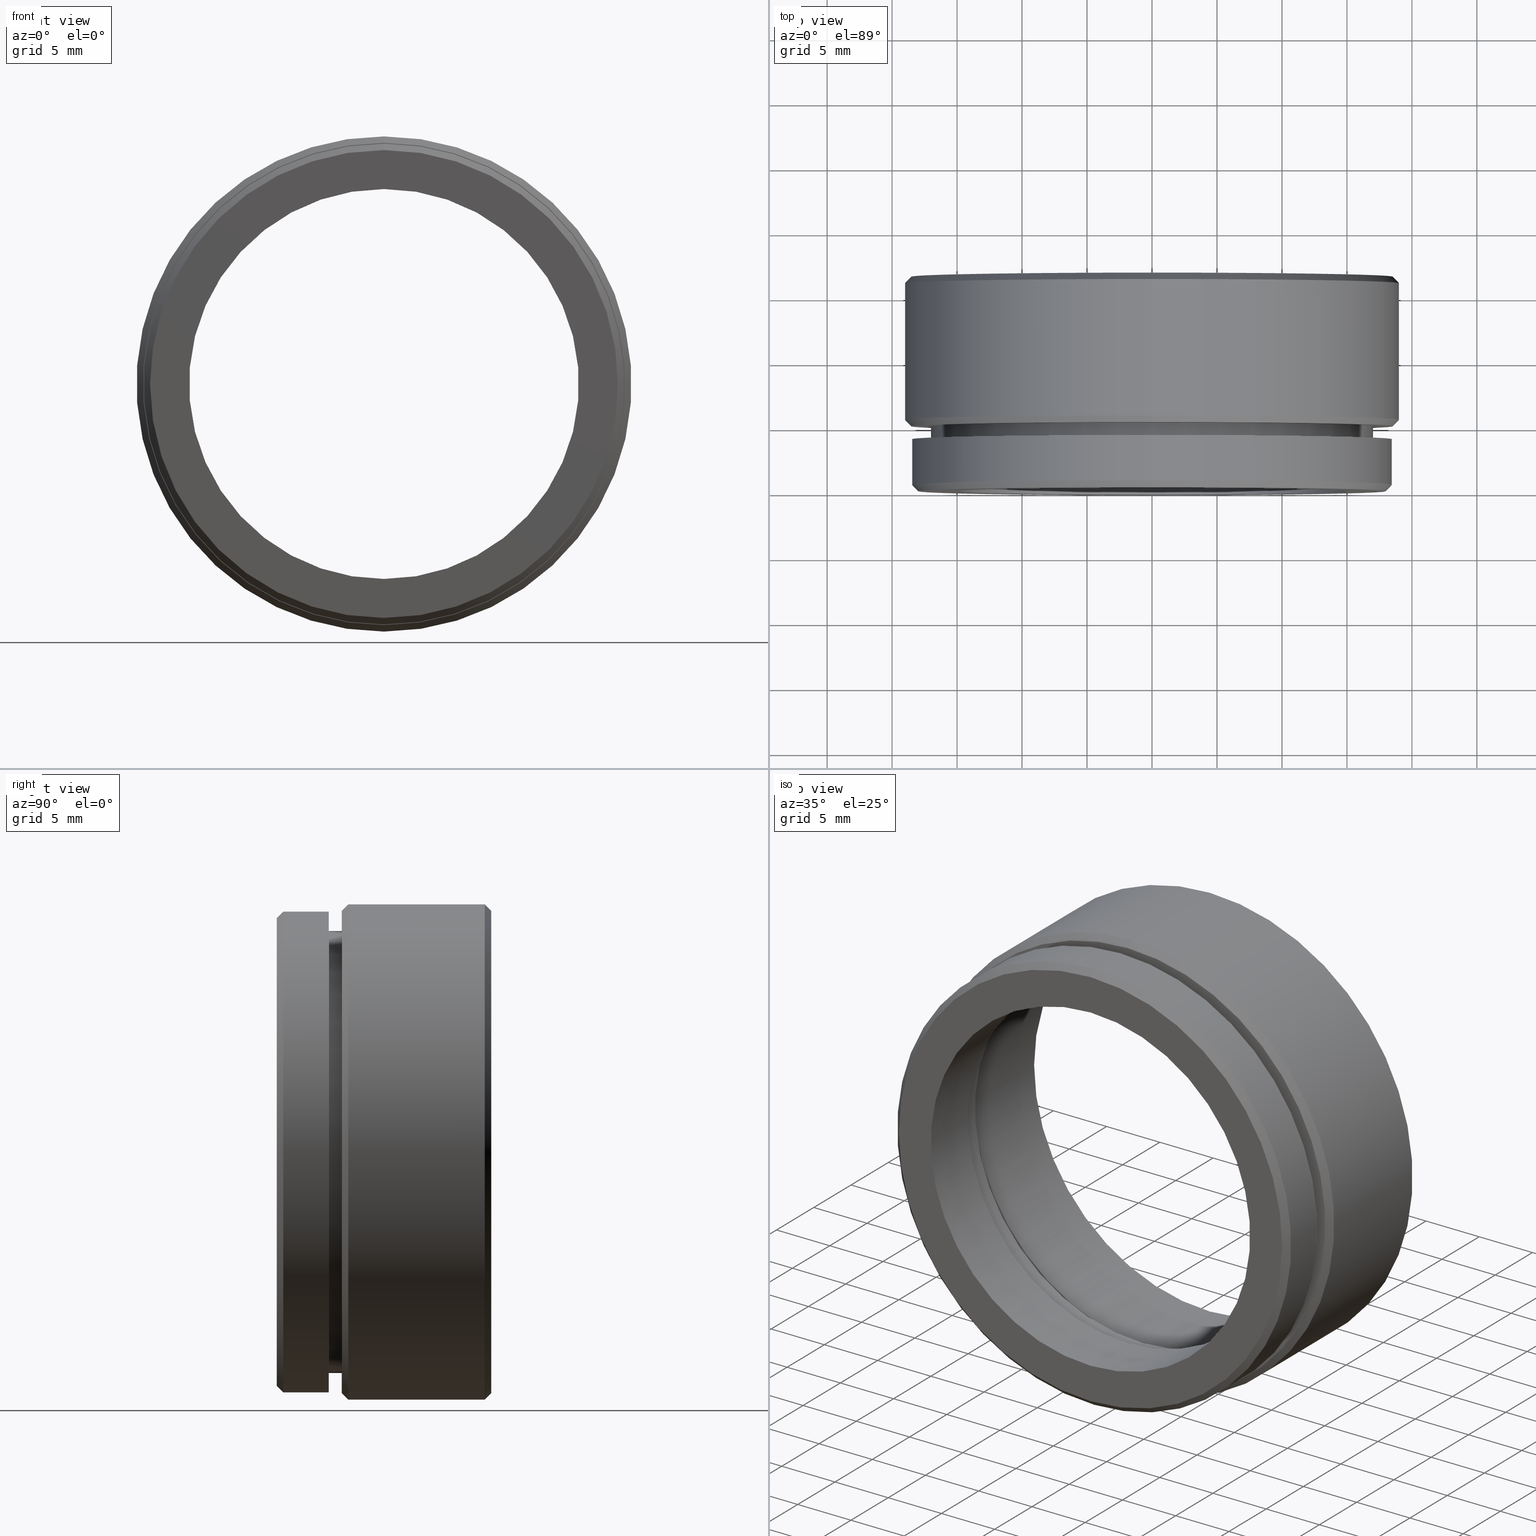
[diagram: canonical four-view strip — front | top / right | iso, engineering-drawing reading convention]
A machine part, canonical four-view strip (front | top / right | iso — engineering-drawing reading convention). The complete STEP part file that produces these views, byte-faithful:
ISO-10303-21;
HEADER;
FILE_DESCRIPTION (( 'STEP AP214' ),
    '1' );
FILE_NAME ('500012.STEP',
    '2019-09-03T06:34:03',
    ( 'user' ),
    ( '΢���й�' ),
    'SwSTEP 2.0',
    'SolidWorks 2016',
    '' );
FILE_SCHEMA (( 'AUTOMOTIVE_DESIGN' ));
ENDSEC;

DATA;
#1 = FILL_AREA_STYLE ('',( #97 ) ) ;
#2 = ORIENTED_EDGE ( 'NONE', *, *, #238, .T. ) ;
#3 = EDGE_LOOP ( 'NONE', ( #55, #191, #33, #820 ) ) ;
#4 = DIRECTION ( 'NONE',  ( 0.0000000000000000000, 0.7071067811865524600, 0.7071067811865426900 ) ) ;
#5 = VERTEX_POINT ( 'NONE', #679 ) ;
#6 = EDGE_CURVE ( 'NONE', #66, #567, #45, .T. ) ;
#7 = DIRECTION ( 'NONE',  ( -0.0000000000000000000, -1.000000000000000000, -0.0000000000000000000 ) ) ;
#8 = PLANE ( 'NONE',  #480 ) ;
#9 =( GEOMETRIC_REPRESENTATION_CONTEXT ( 3 ) GLOBAL_UNCERTAINTY_ASSIGNED_CONTEXT ( ( #782 ) ) GLOBAL_UNIT_ASSIGNED_CONTEXT ( ( #714, #717, #722 ) ) REPRESENTATION_CONTEXT ( 'NONE', 'WORKASPACE' ) );
#10 = DIRECTION ( 'NONE',  ( -0.0000000000000000000, -1.000000000000000000, -0.0000000000000000000 ) ) ;
#11 = AXIS2_PLACEMENT_3D ( 'NONE', #549, #247, #758 ) ;
#12 = CARTESIAN_POINT ( 'NONE',  ( 0.0000000000000000000, 0.0000000000000000000, -15.75000000000000000 ) ) ;
#13 = ORIENTED_EDGE ( 'NONE', *, *, #633, .T. ) ;
#14 = DIRECTION ( 'NONE',  ( 0.0000000000000000000, 0.0000000000000000000, -1.000000000000000000 ) ) ;
#15 = CARTESIAN_POINT ( 'NONE',  ( 0.0000000000000000000, 16.50000000000000000, 17.00000000000000400 ) ) ;
#16 = CIRCLE ( 'NONE', #527, 19.04999999999999700 ) ;
#17 = EDGE_CURVE ( 'NONE', #616, #594, #178, .T. ) ;
#18 = MECHANICAL_DESIGN_GEOMETRIC_PRESENTATION_REPRESENTATION (  '', ( #38 ), #592 ) ;
#19 = CARTESIAN_POINT ( 'NONE',  ( 0.0000000000000000000, 0.0000000000000000000, 0.0000000000000000000 ) ) ;
#20 = DIRECTION ( 'NONE',  ( 0.0000000000000000000, 0.7071067811865474600, 0.7071067811865474600 ) ) ;
#21 = CARTESIAN_POINT ( 'NONE',  ( 0.0000000000000000000, 0.0000000000000000000, 0.0000000000000000000 ) ) ;
#22 = ORIENTED_EDGE ( 'NONE', *, *, #831, .F. ) ;
#23 = MECHANICAL_DESIGN_GEOMETRIC_PRESENTATION_REPRESENTATION (  '', ( #98 ), #9 ) ;
#24 = CARTESIAN_POINT ( 'NONE',  ( 0.0000000000000000000, 5.000000000000000000, 18.54999999999999000 ) ) ;
#25 = PRESENTATION_LAYER_ASSIGNMENT (  '', '', ( #38 ) ) ;
#26 = DIRECTION ( 'NONE',  ( 0.0000000000000000000, 1.000000000000000000, 0.0000000000000000000 ) ) ;
#27 = CARTESIAN_POINT ( 'NONE',  ( 0.0000000000000000000, 16.00000000000000400, 0.0000000000000000000 ) ) ;
#28 = CARTESIAN_POINT ( 'NONE',  ( 0.0000000000000000000, 16.00000000000000400, 0.0000000000000000000 ) ) ;
#29 = VECTOR ( 'NONE', #478, 1000.000000000000000 ) ;
#30 = DIRECTION ( 'NONE',  ( 0.0000000000000000000, -0.0000000000000000000, 1.000000000000000000 ) ) ;
#31 = EDGE_CURVE ( 'NONE', #639, #43, #146, .T. ) ;
#32 = ORIENTED_EDGE ( 'NONE', *, *, #772, .F. ) ;
#33 = ORIENTED_EDGE ( 'NONE', *, *, #386, .T. ) ;
#34 = ORIENTED_EDGE ( 'NONE', *, *, #673, .T. ) ;
#35 = DIRECTION ( 'NONE',  ( 0.0000000000000000000, 0.0000000000000000000, -1.000000000000000000 ) ) ;
#36 = CARTESIAN_POINT ( 'NONE',  ( 2.265596578422603800E-015, 0.5000000000000038900, 18.50000000000000400 ) ) ;
#37 = DIRECTION ( 'NONE',  ( -0.0000000000000000000, -1.000000000000000000, -0.0000000000000000000 ) ) ;
#38 = STYLED_ITEM ( 'NONE', ( #73 ), #324 ) ;
#39 = ORIENTED_EDGE ( 'NONE', *, *, #871, .F. ) ;
#40 = DIRECTION ( 'NONE',  ( -0.0000000000000000000, -1.000000000000000000, -0.0000000000000000000 ) ) ;
#41 = AXIS2_PLACEMENT_3D ( 'NONE', #91, #852, #85 ) ;
#42 = CARTESIAN_POINT ( 'NONE',  ( 2.302335982397023100E-015, 5.000000000000000000, -18.54999999999999000 ) ) ;
#43 = VERTEX_POINT ( 'NONE', #174 ) ;
#44 = CARTESIAN_POINT ( 'NONE',  ( 0.0000000000000000000, 5.000000000000000000, -15.00000000000000000 ) ) ;
#45 = CIRCLE ( 'NONE', #607, 15.00000000000000000 ) ;
#46 = ADVANCED_FACE ( 'NONE', ( #838 ), #646, .T. ) ;
#47 = ORIENTED_EDGE ( 'NONE', *, *, #140, .T. ) ;
#48 = ORIENTED_EDGE ( 'NONE', *, *, #238, .F. ) ;
#49 = CARTESIAN_POINT ( 'NONE',  ( 0.0000000000000000000, 7.000000000000000000, 0.0000000000000000000 ) ) ;
#50 = PLANE ( 'NONE',  #359 ) ;
#51 = EDGE_CURVE ( 'NONE', #558, #66, #692, .T. ) ;
#52 = DIRECTION ( 'NONE',  ( -0.0000000000000000000, -1.000000000000000000, -0.0000000000000000000 ) ) ;
#53 = COLOUR_RGB ( '',1.000000000000000000, 1.000000000000000000, 1.000000000000000000 ) ;
#54 = DIRECTION ( 'NONE',  ( 0.0000000000000000000, 0.0000000000000000000, -1.000000000000000000 ) ) ;
#55 = ORIENTED_EDGE ( 'NONE', *, *, #865, .F. ) ;
#56 = CARTESIAN_POINT ( 'NONE',  ( 0.0000000000000000000, 0.0000000000000000000, -17.00000000000000000 ) ) ;
#57 = AXIS2_PLACEMENT_3D ( 'NONE', #49, #52, #54 ) ;
#58 = ADVANCED_FACE ( 'NONE', ( #695, #843 ), #8, .T. ) ;
#59 = ORIENTED_EDGE ( 'NONE', *, *, #317, .T. ) ;
#60 = AXIS2_PLACEMENT_3D ( 'NONE', #161, #604, #770 ) ;
#61 = DIRECTION ( 'NONE',  ( 0.0000000000000000000, 1.000000000000000000, 0.0000000000000000000 ) ) ;
#62 = DIRECTION ( 'NONE',  ( 0.0000000000000000000, 0.0000000000000000000, -1.000000000000000000 ) ) ;
#63 = FILL_AREA_STYLE_COLOUR ( '', #297 ) ;
#64 = EDGE_LOOP ( 'NONE', ( #791, #48 ) ) ;
#65 = CARTESIAN_POINT ( 'NONE',  ( 0.0000000000000000000, 7.000000000000000000, 0.0000000000000000000 ) ) ;
#66 = VERTEX_POINT ( 'NONE', #245 ) ;
#67 = DIRECTION ( 'NONE',  ( -0.0000000000000000000, -1.000000000000000000, -0.0000000000000000000 ) ) ;
#68 = DIRECTION ( 'NONE',  ( 0.0000000000000000000, 0.0000000000000000000, -1.000000000000000000 ) ) ;
#69 = EDGE_CURVE ( 'NONE', #616, #243, #575, .T. ) ;
#70 = AXIS2_PLACEMENT_3D ( 'NONE', #716, #123, #846 ) ;
#71 = DIRECTION ( 'NONE',  ( 0.0000000000000000000, 0.0000000000000000000, -1.000000000000000000 ) ) ;
#72 = PLANE ( 'NONE',  #801 ) ;
#73 = PRESENTATION_STYLE_ASSIGNMENT (( #414 ) ) ;
#74 = CONICAL_SURFACE ( 'NONE', #170, 17.00000000000000400, 0.7853981633974482800 ) ;
#75 = SURFACE_SIDE_STYLE ('',( #77 ) ) ;
#76 = VERTEX_POINT ( 'NONE', #99 ) ;
#77 = SURFACE_STYLE_FILL_AREA ( #847 ) ;
#78 = AXIS2_PLACEMENT_3D ( 'NONE', #21, #712, #792 ) ;
#79 = CARTESIAN_POINT ( 'NONE',  ( 0.0000000000000000000, 5.000000000000000000, -17.00000000000000000 ) ) ;
#80 = CARTESIAN_POINT ( 'NONE',  ( 0.0000000000000000000, 0.0000000000000000000, 0.0000000000000000000 ) ) ;
#81 = FACE_OUTER_BOUND ( 'NONE', #572, .T. ) ;
#82 = LINE ( 'NONE', #322, #131 ) ;
#83 = CARTESIAN_POINT ( 'NONE',  ( 0.0000000000000000000, 5.000000000000000000, 0.0000000000000000000 ) ) ;
#84 = AXIS2_PLACEMENT_3D ( 'NONE', #206, #509, #106 ) ;
#85 = DIRECTION ( 'NONE',  ( 0.0000000000000000000, 0.0000000000000000000, 1.000000000000000000 ) ) ;
#86 = PRESENTATION_LAYER_ASSIGNMENT (  '', '', ( #98 ) ) ;
#87 = DIRECTION ( 'NONE',  ( -0.0000000000000000000, -1.000000000000000000, -0.0000000000000000000 ) ) ;
#88 = SURFACE_SIDE_STYLE ('',( #459 ) ) ;
#89 = CARTESIAN_POINT ( 'NONE',  ( 17.60000000000000100, 7.000000000000000000, 0.0000000000000000000 ) ) ;
#90 = EDGE_LOOP ( 'NONE', ( #339, #450 ) ) ;
#91 = CARTESIAN_POINT ( 'NONE',  ( 0.0000000000000000000, 5.000000000000000000, 0.0000000000000000000 ) ) ;
#92 = EDGE_CURVE ( 'NONE', #136, #589, #539, .T. ) ;
#93 = CARTESIAN_POINT ( 'NONE',  ( 0.0000000000000000000, 0.0000000000000000000, 0.0000000000000000000 ) ) ;
#94 = VERTEX_POINT ( 'NONE', #740 ) ;
#95 = ORIENTED_EDGE ( 'NONE', *, *, #719, .F. ) ;
#96 = ADVANCED_FACE ( 'NONE', ( #224, #235 ), #700, .T. ) ;
#97 = FILL_AREA_STYLE_COLOUR ( '', #408 ) ;
#98 = STYLED_ITEM ( 'NONE', ( #534 ), #601 ) ;
#99 = CARTESIAN_POINT ( 'NONE',  ( 1.928818708657081700E-015, 7.000000000000000000, 15.75000000000000400 ) ) ;
#100 = AXIS2_PLACEMENT_3D ( 'NONE', #19, #808, #329 ) ;
#101 = CYLINDRICAL_SURFACE ( 'NONE', #84, 19.04999999999999700 ) ;
#102 = CIRCLE ( 'NONE', #115, 16.50000000000000000 ) ;
#103 = CYLINDRICAL_SURFACE ( 'NONE', #100, 15.00000000000000000 ) ;
#104 = CARTESIAN_POINT ( 'NONE',  ( 0.0000000000000000000, 0.0000000000000000000, 0.0000000000000000000 ) ) ;
#105 = FACE_OUTER_BOUND ( 'NONE', #637, .T. ) ;
#106 = DIRECTION ( 'NONE',  ( 0.0000000000000000000, 0.0000000000000000000, -1.000000000000000000 ) ) ;
#107 = CARTESIAN_POINT ( 'NONE',  ( 0.0000000000000000000, 5.500000000000014200, 0.0000000000000000000 ) ) ;
#108 = DIRECTION ( 'NONE',  ( 0.0000000000000000000, 1.000000000000000000, 0.0000000000000000000 ) ) ;
#109 = DIRECTION ( 'NONE',  ( 0.0000000000000000000, 0.0000000000000000000, 1.000000000000000000 ) ) ;
#110 = EDGE_CURVE ( 'NONE', #156, #5, #780, .T. ) ;
#111 = DIRECTION ( 'NONE',  ( 0.0000000000000000000, 0.0000000000000000000, -1.000000000000000000 ) ) ;
#112 = DIRECTION ( 'NONE',  ( 0.0000000000000000000, 1.000000000000000000, 0.0000000000000000000 ) ) ;
#113 = COLOUR_RGB ( '',1.000000000000000000, 1.000000000000000000, 1.000000000000000000 ) ;
#114 = DIRECTION ( 'NONE',  ( 0.0000000000000000000, -0.0000000000000000000, 1.000000000000000000 ) ) ;
#115 = AXIS2_PLACEMENT_3D ( 'NONE', #793, #531, #378 ) ;
#116 = SURFACE_STYLE_FILL_AREA ( #835 ) ;
#117 = DIRECTION ( 'NONE',  ( -0.0000000000000000000, -1.000000000000000000, -0.0000000000000000000 ) ) ;
#118 = CYLINDRICAL_SURFACE ( 'NONE', #78, 15.75000000000000000 ) ;
#119 = COLOUR_RGB ( '',1.000000000000000000, 1.000000000000000000, 1.000000000000000000 ) ;
#120 = EDGE_LOOP ( 'NONE', ( #310, #39, #685, #734 ) ) ;
#121 = CARTESIAN_POINT ( 'NONE',  ( 0.0000000000000000000, 0.0000000000000000000, -16.50000000000000000 ) ) ;
#122 = CARTESIAN_POINT ( 'NONE',  ( 0.0000000000000000000, 16.00000000000000400, -19.04999999999999700 ) ) ;
#123 = DIRECTION ( 'NONE',  ( -0.0000000000000000000, -1.000000000000000000, -0.0000000000000000000 ) ) ;
#124 = ADVANCED_FACE ( 'NONE', ( #550 ), #743, .T. ) ;
#125 = DIRECTION ( 'NONE',  ( 0.0000000000000000000, 0.0000000000000000000, -1.000000000000000000 ) ) ;
#126 = EDGE_CURVE ( 'NONE', #164, #614, #416, .T. ) ;
#127 = FACE_OUTER_BOUND ( 'NONE', #466, .T. ) ;
#128 = CIRCLE ( 'NONE', #135, 18.50000000000000400 ) ;
#129 = VECTOR ( 'NONE', #631, 1000.000000000000100 ) ;
#130 = DIRECTION ( 'NONE',  ( 0.0000000000000000000, 1.000000000000000000, 0.0000000000000000000 ) ) ;
#131 = VECTOR ( 'NONE', #568, 1000.000000000000100 ) ;
#132 = FACE_OUTER_BOUND ( 'NONE', #120, .T. ) ;
#133 = ORIENTED_EDGE ( 'NONE', *, *, #165, .T. ) ;
#134 = DIRECTION ( 'NONE',  ( 0.0000000000000000000, 0.0000000000000000000, 1.000000000000000000 ) ) ;
#135 = AXIS2_PLACEMENT_3D ( 'NONE', #308, #344, #555 ) ;
#136 = VERTEX_POINT ( 'NONE', #251 ) ;
#137 =( GEOMETRIC_REPRESENTATION_CONTEXT ( 3 ) GLOBAL_UNCERTAINTY_ASSIGNED_CONTEXT ( ( #432 ) ) GLOBAL_UNIT_ASSIGNED_CONTEXT ( ( #693, #694, #697 ) ) REPRESENTATION_CONTEXT ( 'NONE', 'WORKASPACE' ) );
#138 =( NAMED_UNIT ( * ) PLANE_ANGLE_UNIT ( ) SI_UNIT ( $, .RADIAN. ) );
#139 = DIRECTION ( 'NONE',  ( 0.0000000000000000000, 0.0000000000000000000, -1.000000000000000000 ) ) ;
#140 = EDGE_CURVE ( 'NONE', #711, #754, #491, .T. ) ;
#141 = ORIENTED_EDGE ( 'NONE', *, *, #840, .T. ) ;
#142 = UNCERTAINTY_MEASURE_WITH_UNIT (LENGTH_MEASURE( 1.000000000000000100E-005 ), #547, 'distance_accuracy_value', 'NONE');
#143 = DIRECTION ( 'NONE',  ( 0.0000000000000000000, 0.0000000000000000000, -1.000000000000000000 ) ) ;
#144 = VERTEX_POINT ( 'NONE', #36 ) ;
#145 = CARTESIAN_POINT ( 'NONE',  ( 0.0000000000000000000, 0.0000000000000000000, 0.0000000000000000000 ) ) ;
#146 = LINE ( 'NONE', #340, #175 ) ;
#147 = VECTOR ( 'NONE', #622, 1000.000000000000000 ) ;
#148 = AXIS2_PLACEMENT_3D ( 'NONE', #687, #688, #691 ) ;
#149 = CYLINDRICAL_SURFACE ( 'NONE', #11, 16.50000000000000000 ) ;
#150 = CIRCLE ( 'NONE', #221, 17.60000000000000100 ) ;
#151 = AXIS2_PLACEMENT_3D ( 'NONE', #27, #314, #302 ) ;
#152 = DIRECTION ( 'NONE',  ( -0.0000000000000000000, -1.000000000000000000, -0.0000000000000000000 ) ) ;
#153 = DIRECTION ( 'NONE',  ( -0.0000000000000000000, -1.000000000000000000, -0.0000000000000000000 ) ) ;
#154 = ORIENTED_EDGE ( 'NONE', *, *, #648, .T. ) ;
#155 = CARTESIAN_POINT ( 'NONE',  ( 0.0000000000000000000, 4.000000000000000900, -18.50000000000000400 ) ) ;
#156 = VERTEX_POINT ( 'NONE', #783 ) ;
#157 = VERTEX_POINT ( 'NONE', #830 ) ;
#158 = CARTESIAN_POINT ( 'NONE',  ( 1.836970198721029600E-015, 5.000000000000000000, 15.00000000000000000 ) ) ;
#159 = ORIENTED_EDGE ( 'NONE', *, *, #772, .T. ) ;
#160 = PLANE ( 'NONE',  #760 ) ;
#161 = CARTESIAN_POINT ( 'NONE',  ( 17.00000000000000000, 5.000000000000000000, 0.0000000000000000000 ) ) ;
#162 = CARTESIAN_POINT ( 'NONE',  ( 2.234980408443920000E-015, 0.0000000000000000000, -18.00000000000000400 ) ) ;
#163 = VECTOR ( 'NONE', #516, 1000.000000000000000 ) ;
#164 = VERTEX_POINT ( 'NONE', #361 ) ;
#165 = EDGE_CURVE ( 'NONE', #614, #164, #286, .T. ) ;
#166 = VECTOR ( 'NONE', #410, 1000.000000000000000 ) ;
#167 = EDGE_LOOP ( 'NONE', ( #664, #141, #437, #645 ) ) ;
#168 = CARTESIAN_POINT ( 'NONE',  ( 0.0000000000000000000, 7.000000000000000000, -17.60000000000000100 ) ) ;
#169 = AXIS2_PLACEMENT_3D ( 'NONE', #836, #424, #401 ) ;
#170 = AXIS2_PLACEMENT_3D ( 'NONE', #626, #671, #647 ) ;
#171 = CARTESIAN_POINT ( 'NONE',  ( 0.0000000000000000000, 0.0000000000000000000, 18.00000000000000400 ) ) ;
#172 = CARTESIAN_POINT ( 'NONE',  ( 0.0000000000000000000, 0.0000000000000000000, -15.00000000000000000 ) ) ;
#173 = AXIS2_PLACEMENT_3D ( 'NONE', #721, #523, #71 ) ;
#174 = CARTESIAN_POINT ( 'NONE',  ( 2.081899558550500300E-015, 4.000000000000000000, 17.00000000000000000 ) ) ;
#175 = VECTOR ( 'NONE', #773, 1000.000000000000000 ) ;
#176 = CYLINDRICAL_SURFACE ( 'NONE', #190, 18.50000000000000400 ) ;
#177 = CIRCLE ( 'NONE', #151, 19.04999999999999700 ) ;
#178 = LINE ( 'NONE', #857, #360 ) ;
#179 = EDGE_CURVE ( 'NONE', #614, #499, #418, .T. ) ;
#180 = DIRECTION ( 'NONE',  ( -0.0000000000000000000, -1.000000000000000000, -0.0000000000000000000 ) ) ;
#181 = DIRECTION ( 'NONE',  ( -0.0000000000000000000, -1.000000000000000000, -0.0000000000000000000 ) ) ;
#182 = CARTESIAN_POINT ( 'NONE',  ( 0.0000000000000000000, 16.50000000000000000, 17.00000000000000400 ) ) ;
#183 = ORIENTED_EDGE ( 'NONE', *, *, #731, .F. ) ;
#184 = AXIS2_PLACEMENT_3D ( 'NONE', #806, #181, #109 ) ;
#185 = LINE ( 'NONE', #610, #222 ) ;
#186 =( NAMED_UNIT ( * ) SI_UNIT ( $, .STERADIAN. ) SOLID_ANGLE_UNIT ( ) );
#187 = FACE_BOUND ( 'NONE', #236, .T. ) ;
#188 = CARTESIAN_POINT ( 'NONE',  ( 16.50000000000000000, 8.000000000000000000, 0.0000000000000000000 ) ) ;
#189 = ORIENTED_EDGE ( 'NONE', *, *, #633, .F. ) ;
#190 = AXIS2_PLACEMENT_3D ( 'NONE', #680, #237, #608 ) ;
#191 = ORIENTED_EDGE ( 'NONE', *, *, #140, .F. ) ;
#192 = ORIENTED_EDGE ( 'NONE', *, *, #31, .F. ) ;
#193 = DIRECTION ( 'NONE',  ( 0.0000000000000000000, -1.000000000000000000, -0.0000000000000000000 ) ) ;
#194 = ORIENTED_EDGE ( 'NONE', *, *, #862, .F. ) ;
#195 = DIRECTION ( 'NONE',  ( 0.0000000000000000000, 0.0000000000000000000, -1.000000000000000000 ) ) ;
#196 = ADVANCED_FACE ( 'NONE', ( #812 ), #358, .T. ) ;
#197 = DIRECTION ( 'NONE',  ( 0.0000000000000000000, 0.0000000000000000000, -1.000000000000000000 ) ) ;
#198 = EDGE_CURVE ( 'NONE', #558, #463, #369, .T. ) ;
#199 = CIRCLE ( 'NONE', #173, 15.75000000000000000 ) ;
#200 = ADVANCED_FACE ( 'NONE', ( #431 ), #149, .F. ) ;
#201 = CIRCLE ( 'NONE', #169, 18.50000000000000400 ) ;
#202 = ORIENTED_EDGE ( 'NONE', *, *, #375, .T. ) ;
#203 = CIRCLE ( 'NONE', #184, 17.00000000000000400 ) ;
#204 = ORIENTED_EDGE ( 'NONE', *, *, #165, .F. ) ;
#205 = AXIS2_PLACEMENT_3D ( 'NONE', #634, #638, #642 ) ;
#206 = CARTESIAN_POINT ( 'NONE',  ( 0.0000000000000000000, 0.0000000000000000000, 0.0000000000000000000 ) ) ;
#207 = DIRECTION ( 'NONE',  ( -0.0000000000000000000, -1.000000000000000000, -0.0000000000000000000 ) ) ;
#208 = CARTESIAN_POINT ( 'NONE',  ( 2.155378366499341600E-015, 8.000000000000000000, 17.60000000000000100 ) ) ;
#209 =( GEOMETRIC_REPRESENTATION_CONTEXT ( 3 ) GLOBAL_UNCERTAINTY_ASSIGNED_CONTEXT ( ( #503 ) ) GLOBAL_UNIT_ASSIGNED_CONTEXT ( ( #845, #225, #788 ) ) REPRESENTATION_CONTEXT ( 'NONE', 'WORKASPACE' ) );
#210 = DIRECTION ( 'NONE',  ( 0.0000000000000000000, 1.000000000000000000, 0.0000000000000000000 ) ) ;
#211 = CARTESIAN_POINT ( 'NONE',  ( 2.081899558550500700E-015, 16.50000000000000000, -17.00000000000000400 ) ) ;
#212 = CARTESIAN_POINT ( 'NONE',  ( 0.0000000000000000000, 0.5000000000000038900, -18.50000000000000400 ) ) ;
#213 = CIRCLE ( 'NONE', #205, 15.00000000000000000 ) ;
#214 = DIRECTION ( 'NONE',  ( -0.0000000000000000000, -1.000000000000000000, -0.0000000000000000000 ) ) ;
#215 = ORIENTED_EDGE ( 'NONE', *, *, #485, .F. ) ;
#216 = ORIENTED_EDGE ( 'NONE', *, *, #813, .T. ) ;
#217 = PLANE ( 'NONE',  #715 ) ;
#218 = EDGE_CURVE ( 'NONE', #157, #804, #199, .T. ) ;
#219 = ORIENTED_EDGE ( 'NONE', *, *, #785, .F. ) ;
#220 = CARTESIAN_POINT ( 'NONE',  ( 2.332952152375707300E-015, 5.500000000000014200, 19.04999999999999700 ) ) ;
#221 = AXIS2_PLACEMENT_3D ( 'NONE', #655, #658, #659 ) ;
#222 = VECTOR ( 'NONE', #180, 1000.000000000000000 ) ;
#223 = MECHANICAL_DESIGN_GEOMETRIC_PRESENTATION_REPRESENTATION (  '', ( #307 ), #209 ) ;
#224 = FACE_BOUND ( 'NONE', #738, .T. ) ;
#225 =( NAMED_UNIT ( * ) PLANE_ANGLE_UNIT ( ) SI_UNIT ( $, .RADIAN. ) );
#226 = CARTESIAN_POINT ( 'NONE',  ( 15.75000000000000000, 5.000000000000000000, 0.0000000000000000000 ) ) ;
#227 = CARTESIAN_POINT ( 'NONE',  ( 0.0000000000000000000, 0.5000000000000038900, 0.0000000000000000000 ) ) ;
#228 = EDGE_CURVE ( 'NONE', #593, #583, #203, .T. ) ;
#229 = ORIENTED_EDGE ( 'NONE', *, *, #126, .F. ) ;
#230 = DIRECTION ( 'NONE',  ( 0.0000000000000000000, 1.000000000000000000, 0.0000000000000000000 ) ) ;
#231 = ORIENTED_EDGE ( 'NONE', *, *, #447, .T. ) ;
#232 =( LENGTH_UNIT ( ) NAMED_UNIT ( * ) SI_UNIT ( .MILLI., .METRE. ) );
#233 = LINE ( 'NONE', #620, #147 ) ;
#234 = DIRECTION ( 'NONE',  ( 0.0000000000000000000, 0.0000000000000000000, -1.000000000000000000 ) ) ;
#235 = FACE_OUTER_BOUND ( 'NONE', #526, .T. ) ;
#236 = EDGE_LOOP ( 'NONE', ( #183, #461 ) ) ;
#237 = DIRECTION ( 'NONE',  ( -0.0000000000000000000, -1.000000000000000000, -0.0000000000000000000 ) ) ;
#238 = EDGE_CURVE ( 'NONE', #652, #521, #201, .T. ) ;
#239 = DIRECTION ( 'NONE',  ( 0.0000000000000000000, 1.000000000000000000, 0.0000000000000000000 ) ) ;
#240 = DIRECTION ( 'NONE',  ( 0.0000000000000000000, -0.0000000000000000000, 1.000000000000000000 ) ) ;
#241 =( GEOMETRIC_REPRESENTATION_CONTEXT ( 3 ) GLOBAL_UNCERTAINTY_ASSIGNED_CONTEXT ( ( #867 ) ) GLOBAL_UNIT_ASSIGNED_CONTEXT ( ( #598, #600, #603 ) ) REPRESENTATION_CONTEXT ( 'NONE', 'WORKASPACE' ) );
#242 =( NAMED_UNIT ( * ) PLANE_ANGLE_UNIT ( ) SI_UNIT ( $, .RADIAN. ) );
#243 = VERTEX_POINT ( 'NONE', #755 ) ;
#244 = ORIENTED_EDGE ( 'NONE', *, *, #656, .T. ) ;
#245 = CARTESIAN_POINT ( 'NONE',  ( 1.836970198721029600E-015, 0.0000000000000000000, 15.00000000000000000 ) ) ;
#246 = DIRECTION ( 'NONE',  ( 0.0000000000000000000, 1.000000000000000000, 0.0000000000000000000 ) ) ;
#247 = DIRECTION ( 'NONE',  ( -0.0000000000000000000, -1.000000000000000000, -0.0000000000000000000 ) ) ;
#248 = CARTESIAN_POINT ( 'NONE',  ( 0.0000000000000000000, 8.000000000000001800, 0.0000000000000000000 ) ) ;
#249 = EDGE_CURVE ( 'NONE', #94, #499, #177, .T. ) ;
#250 = CIRCLE ( 'NONE', #70, 17.00000000000000000 ) ;
#251 = CARTESIAN_POINT ( 'NONE',  ( 0.0000000000000000000, 8.000000000000000000, -17.60000000000000100 ) ) ;
#252 = CARTESIAN_POINT ( 'NONE',  ( 0.0000000000000000000, 16.00000000000000400, -19.04999999999999700 ) ) ;
#253 = CARTESIAN_POINT ( 'NONE',  ( 0.0000000000000000000, 0.0000000000000000000, 0.0000000000000000000 ) ) ;
#254 = DIRECTION ( 'NONE',  ( 0.0000000000000000000, 0.0000000000000000000, 1.000000000000000000 ) ) ;
#255 = CARTESIAN_POINT ( 'NONE',  ( 0.0000000000000000000, 0.0000000000000000000, 0.0000000000000000000 ) ) ;
#256 = ORIENTED_EDGE ( 'NONE', *, *, #352, .T. ) ;
#257 = MECHANICAL_DESIGN_GEOMETRIC_PRESENTATION_REPRESENTATION (  '', ( #347 ), #241 ) ;
#258 = ORIENTED_EDGE ( 'NONE', *, *, #17, .T. ) ;
#259 = EDGE_LOOP ( 'NONE', ( #229, #323, #632, #313 ) ) ;
#260 = CARTESIAN_POINT ( 'NONE',  ( 0.0000000000000000000, 5.000000000000000000, 0.0000000000000000000 ) ) ;
#261 = PRESENTATION_LAYER_ASSIGNMENT (  '', '', ( #307 ) ) ;
#262 = FILL_AREA_STYLE_COLOUR ( '', #113 ) ;
#263 = DIRECTION ( 'NONE',  ( -0.0000000000000000000, -1.000000000000000000, -0.0000000000000000000 ) ) ;
#264 = DIRECTION ( 'NONE',  ( 0.0000000000000000000, 0.0000000000000000000, -1.000000000000000000 ) ) ;
#265 = ORIENTED_EDGE ( 'NONE', *, *, #800, .F. ) ;
#266 = CARTESIAN_POINT ( 'NONE',  ( 0.0000000000000000000, 0.0000000000000000000, 0.0000000000000000000 ) ) ;
#267 = DIRECTION ( 'NONE',  ( -0.0000000000000000000, -1.000000000000000000, -0.0000000000000000000 ) ) ;
#268 = CARTESIAN_POINT ( 'NONE',  ( 0.0000000000000000000, 0.0000000000000000000, -15.00000000000000000 ) ) ;
#269 = EDGE_CURVE ( 'NONE', #521, #652, #128, .T. ) ;
#270 = ORIENTED_EDGE ( 'NONE', *, *, #796, .F. ) ;
#271 = ADVANCED_FACE ( 'NONE', ( #132 ), #103, .F. ) ;
#272 = CARTESIAN_POINT ( 'NONE',  ( 0.0000000000000000000, 16.50000000000000000, 0.0000000000000000000 ) ) ;
#273 = DIRECTION ( 'NONE',  ( 0.0000000000000000000, 0.0000000000000000000, 1.000000000000000000 ) ) ;
#274 = CARTESIAN_POINT ( 'NONE',  ( 0.0000000000000000000, 0.5000000000000038900, 0.0000000000000000000 ) ) ;
#275 = PRESENTATION_LAYER_ASSIGNMENT (  '', '', ( #347 ) ) ;
#276 = EDGE_LOOP ( 'NONE', ( #749, #204, #451, #597 ) ) ;
#277 = ADVANCED_FACE ( 'NONE', ( #127 ), #101, .T. ) ;
#278 = ADVANCED_FACE ( 'NONE', ( #81 ), #118, .F. ) ;
#279 = AXIS2_PLACEMENT_3D ( 'NONE', #93, #87, #197 ) ;
#280 = DIRECTION ( 'NONE',  ( 0.0000000000000000000, 1.000000000000000000, 0.0000000000000000000 ) ) ;
#281 = DIRECTION ( 'NONE',  ( 0.0000000000000000000, 1.000000000000000000, 0.0000000000000000000 ) ) ;
#282 = VERTEX_POINT ( 'NONE', #468 ) ;
#283 = EDGE_CURVE ( 'NONE', #5, #156, #102, .T. ) ;
#284 = DIRECTION ( 'NONE',  ( 0.0000000000000000000, 0.0000000000000000000, -1.000000000000000000 ) ) ;
#285 = PRESENTATION_STYLE_ASSIGNMENT (( #596 ) ) ;
#286 = CIRCLE ( 'NONE', #326, 18.55000000000000100 ) ;
#287 = CYLINDRICAL_SURFACE ( 'NONE', #304, 17.60000000000000100 ) ;
#288 = CIRCLE ( 'NONE', #321, 18.00000000000000400 ) ;
#289 = CARTESIAN_POINT ( 'NONE',  ( 2.081899558550500300E-015, 5.000000000000000000, 17.00000000000000000 ) ) ;
#290 = ORIENTED_EDGE ( 'NONE', *, *, #249, .T. ) ;
#291 = AXIS2_PLACEMENT_3D ( 'NONE', #477, #387, #706 ) ;
#292 = ADVANCED_FACE ( 'NONE', ( #105, #187 ), #376, .T. ) ;
#293 = DIRECTION ( 'NONE',  ( -0.0000000000000000000, 1.000000000000000000, -0.0000000000000000000 ) ) ;
#294 = ORIENTED_EDGE ( 'NONE', *, *, #228, .T. ) ;
#295 = AXIS2_PLACEMENT_3D ( 'NONE', #28, #37, #35 ) ;
#296 = FILL_AREA_STYLE ('',( #63 ) ) ;
#297 = COLOUR_RGB ( '',1.000000000000000000, 1.000000000000000000, 1.000000000000000000 ) ;
#298 = DIRECTION ( 'NONE',  ( -0.0000000000000000000, -1.000000000000000000, -0.0000000000000000000 ) ) ;
#299 = EDGE_LOOP ( 'NONE', ( #374, #319 ) ) ;
#300 = EDGE_CURVE ( 'NONE', #164, #94, #82, .T. ) ;
#301 = ORIENTED_EDGE ( 'NONE', *, *, #447, .F. ) ;
#302 = DIRECTION ( 'NONE',  ( 0.0000000000000000000, 0.0000000000000000000, 1.000000000000000000 ) ) ;
#303 = DIRECTION ( 'NONE',  ( -0.0000000000000000000, 1.000000000000000000, -0.0000000000000000000 ) ) ;
#304 = AXIS2_PLACEMENT_3D ( 'NONE', #586, #815, #467 ) ;
#305 = FACE_OUTER_BOUND ( 'NONE', #384, .T. ) ;
#306 = FACE_OUTER_BOUND ( 'NONE', #64, .T. ) ;
#307 = STYLED_ITEM ( 'NONE', ( #357 ), #200 ) ;
#308 = CARTESIAN_POINT ( 'NONE',  ( 0.0000000000000000000, 4.000000000000000900, 0.0000000000000000000 ) ) ;
#309 = FACE_OUTER_BOUND ( 'NONE', #417, .T. ) ;
#310 = ORIENTED_EDGE ( 'NONE', *, *, #51, .F. ) ;
#311 = SURFACE_STYLE_USAGE ( .BOTH. , #88 ) ;
#312 = CARTESIAN_POINT ( 'NONE',  ( 2.265596578422603800E-015, 0.0000000000000000000, 18.50000000000000400 ) ) ;
#313 = ORIENTED_EDGE ( 'NONE', *, *, #179, .F. ) ;
#314 = DIRECTION ( 'NONE',  ( -0.0000000000000000000, -1.000000000000000000, -0.0000000000000000000 ) ) ;
#315 = DIRECTION ( 'NONE',  ( 0.0000000000000000000, 0.0000000000000000000, -1.000000000000000000 ) ) ;
#316 = SURFACE_STYLE_FILL_AREA ( #296 ) ;
#317 = EDGE_CURVE ( 'NONE', #282, #43, #250, .T. ) ;
#318 = VECTOR ( 'NONE', #570, 1000.000000000000000 ) ;
#319 = ORIENTED_EDGE ( 'NONE', *, *, #425, .T. ) ;
#320 = CARTESIAN_POINT ( 'NONE',  ( 1.836970198721029600E-015, 0.0000000000000000000, 15.00000000000000000 ) ) ;
#321 = AXIS2_PLACEMENT_3D ( 'NONE', #855, #759, #139 ) ;
#322 = CARTESIAN_POINT ( 'NONE',  ( 2.332952152375707300E-015, 16.00000000000000400, 19.04999999999999700 ) ) ;
#323 = ORIENTED_EDGE ( 'NONE', *, *, #300, .T. ) ;
#324 = MANIFOLD_SOLID_BREP ( '����1', #737 ) ;
#325 = CARTESIAN_POINT ( 'NONE',  ( 0.0000000000000000000, 0.0000000000000000000, 0.0000000000000000000 ) ) ;
#326 = AXIS2_PLACEMENT_3D ( 'NONE', #849, #210, #829 ) ;
#327 = DIRECTION ( 'NONE',  ( 0.0000000000000000000, -0.7071067811865474600, -0.7071067811865474600 ) ) ;
#328 = ORIENTED_EDGE ( 'NONE', *, *, #69, .F. ) ;
#329 = DIRECTION ( 'NONE',  ( 0.0000000000000000000, 0.0000000000000000000, -1.000000000000000000 ) ) ;
#330 = CARTESIAN_POINT ( 'NONE',  ( 0.0000000000000000000, 15.99999999999999600, 0.0000000000000000000 ) ) ;
#332 = ADVANCED_FACE ( 'NONE', ( #844 ), #825, .T. ) ;
#331 = DIRECTION ( 'NONE',  ( -0.0000000000000000000, 1.000000000000000000, -0.0000000000000000000 ) ) ;
#333 = DIRECTION ( 'NONE',  ( 0.0000000000000000000, 0.0000000000000000000, 1.000000000000000000 ) ) ;
#334 = DIRECTION ( 'NONE',  ( 0.0000000000000000000, 0.0000000000000000000, -1.000000000000000000 ) ) ;
#335 = FACE_BOUND ( 'NONE', #842, .T. ) ;
#336 = EDGE_CURVE ( 'NONE', #711, #5, #839, .T. ) ;
#337 = LINE ( 'NONE', #581, #318 ) ;
#338 = CARTESIAN_POINT ( 'NONE',  ( 2.265596578422603800E-015, 4.000000000000000900, 18.50000000000000400 ) ) ;
#339 = ORIENTED_EDGE ( 'NONE', *, *, #92, .T. ) ;
#340 = CARTESIAN_POINT ( 'NONE',  ( 2.081899558550500300E-015, 0.0000000000000000000, 17.00000000000000000 ) ) ;
#341 = CARTESIAN_POINT ( 'NONE',  ( 0.0000000000000000000, 5.000000000000000000, 0.0000000000000000000 ) ) ;
#342 = ORIENTED_EDGE ( 'NONE', *, *, #386, .F. ) ;
#343 = AXIS2_PLACEMENT_3D ( 'NONE', #464, #293, #421 ) ;
#344 = DIRECTION ( 'NONE',  ( -0.0000000000000000000, -1.000000000000000000, -0.0000000000000000000 ) ) ;
#345 = DIRECTION ( 'NONE',  ( -0.0000000000000000000, -1.000000000000000000, -0.0000000000000000000 ) ) ;
#346 = LINE ( 'NONE', #15, #807 ) ;
#347 = STYLED_ITEM ( 'NONE', ( #285 ), #824 ) ;
#348 = ORIENTED_EDGE ( 'NONE', *, *, #92, .F. ) ;
#349 = EDGE_LOOP ( 'NONE', ( #702, #545, #778, #419 ) ) ;
#350 = DIRECTION ( 'NONE',  ( 0.0000000000000000000, 0.0000000000000000000, -1.000000000000000000 ) ) ;
#351 = CARTESIAN_POINT ( 'NONE',  ( 19.04999999999999700, 16.50000000000000000, 0.0000000000000000000 ) ) ;
#352 = EDGE_CURVE ( 'NONE', #243, #144, #834, .T. ) ;
#353 = AXIS2_PLACEMENT_3D ( 'NONE', #649, #724, #726 ) ;
#354 = DIRECTION ( 'NONE',  ( 0.0000000000000000000, 0.7071067811865500200, 0.7071067811865451300 ) ) ;
#355 = SURFACE_STYLE_FILL_AREA ( #708 ) ;
#356 = ADVANCED_FACE ( 'NONE', ( #833 ), #810, .T. ) ;
#357 = PRESENTATION_STYLE_ASSIGNMENT (( #311 ) ) ;
#358 = CYLINDRICAL_SURFACE ( 'NONE', #279, 19.04999999999999700 ) ;
#359 = AXIS2_PLACEMENT_3D ( 'NONE', #582, #61, #30 ) ;
#360 = VECTOR ( 'NONE', #651, 1000.000000000000100 ) ;
#361 = CARTESIAN_POINT ( 'NONE',  ( 2.302335982397023900E-015, 16.50000000000000000, 18.55000000000000100 ) ) ;
#362 = ORIENTED_EDGE ( 'NONE', *, *, #681, .T. ) ;
#363 = CARTESIAN_POINT ( 'NONE',  ( 0.0000000000000000000, 5.000000000000000000, 0.0000000000000000000 ) ) ;
#364 = DIRECTION ( 'NONE',  ( -0.0000000000000000000, -1.000000000000000000, -0.0000000000000000000 ) ) ;
#365 = DIRECTION ( 'NONE',  ( -0.0000000000000000000, -1.000000000000000000, -0.0000000000000000000 ) ) ;
#366 = DIRECTION ( 'NONE',  ( 0.0000000000000000000, 0.0000000000000000000, -1.000000000000000000 ) ) ;
#367 = DIRECTION ( 'NONE',  ( -0.0000000000000000000, -1.000000000000000000, -0.0000000000000000000 ) ) ;
#368 = CYLINDRICAL_SURFACE ( 'NONE', #399, 16.50000000000000000 ) ;
#369 = CIRCLE ( 'NONE', #291, 15.00000000000000000 ) ;
#370 = DIRECTION ( 'NONE',  ( -0.0000000000000000000, -1.000000000000000000, -0.0000000000000000000 ) ) ;
#371 = ORIENTED_EDGE ( 'NONE', *, *, #435, .T. ) ;
#372 = CARTESIAN_POINT ( 'NONE',  ( 0.0000000000000000000, 16.50000000000000000, 0.0000000000000000000 ) ) ;
#373 = FACE_OUTER_BOUND ( 'NONE', #588, .T. ) ;
#374 = ORIENTED_EDGE ( 'NONE', *, *, #796, .T. ) ;
#375 = EDGE_CURVE ( 'NONE', #790, #804, #532, .T. ) ;
#376 = PLANE ( 'NONE',  #60 ) ;
#377 = DIRECTION ( 'NONE',  ( -0.0000000000000000000, -1.000000000000000000, -0.0000000000000000000 ) ) ;
#378 = DIRECTION ( 'NONE',  ( 0.0000000000000000000, 0.0000000000000000000, -1.000000000000000000 ) ) ;
#379 = DIRECTION ( 'NONE',  ( 0.0000000000000000000, 0.0000000000000000000, 1.000000000000000000 ) ) ;
#380 = CARTESIAN_POINT ( 'NONE',  ( 0.0000000000000000000, 16.00000000000000400, 0.0000000000000000000 ) ) ;
#381 = AXIS2_PLACEMENT_3D ( 'NONE', #341, #207, #872 ) ;
#382 = CARTESIAN_POINT ( 'NONE',  ( 0.0000000000000000000, 0.0000000000000000000, 0.0000000000000000000 ) ) ;
#383 = AXIS2_PLACEMENT_3D ( 'NONE', #662, #280, #766 ) ;
#384 = EDGE_LOOP ( 'NONE', ( #22, #348, #606, #739 ) ) ;
#385 = DIRECTION ( 'NONE',  ( 0.0000000000000000000, 0.0000000000000000000, -1.000000000000000000 ) ) ;
#386 = EDGE_CURVE ( 'NONE', #711, #583, #346, .T. ) ;
#387 = DIRECTION ( 'NONE',  ( -0.0000000000000000000, -1.000000000000000000, -0.0000000000000000000 ) ) ;
#388 = CARTESIAN_POINT ( 'NONE',  ( 0.0000000000000000000, 4.000000000000000000, 0.0000000000000000000 ) ) ;
#389 = ORIENTED_EDGE ( 'NONE', *, *, #269, .T. ) ;
#390 = DIRECTION ( 'NONE',  ( -0.0000000000000000000, -1.000000000000000000, -0.0000000000000000000 ) ) ;
#391 = DIRECTION ( 'NONE',  ( 0.0000000000000000000, 0.0000000000000000000, -1.000000000000000000 ) ) ;
#392 = CARTESIAN_POINT ( 'NONE',  ( 1.928818708657081300E-015, 0.0000000000000000000, 15.75000000000000000 ) ) ;
#393 = AXIS2_PLACEMENT_3D ( 'NONE', #382, #705, #471 ) ;
#394 = LINE ( 'NONE', #560, #163 ) ;
#395 = EDGE_LOOP ( 'NONE', ( #528, #861 ) ) ;
#396 = FACE_OUTER_BOUND ( 'NONE', #3, .T. ) ;
#397 = ORIENTED_EDGE ( 'NONE', *, *, #6, .F. ) ;
#398 = EDGE_LOOP ( 'NONE', ( #389, #244, #13, #219 ) ) ;
#399 = AXIS2_PLACEMENT_3D ( 'NONE', #533, #502, #556 ) ;
#400 = CARTESIAN_POINT ( 'NONE',  ( 0.0000000000000000000, 5.500000000000014200, -19.04999999999999700 ) ) ;
#401 = DIRECTION ( 'NONE',  ( 0.0000000000000000000, 0.0000000000000000000, -1.000000000000000000 ) ) ;
#402 = CARTESIAN_POINT ( 'NONE',  ( 2.020667218593133100E-015, 15.99999999999999600, 16.50000000000000000 ) ) ;
#403 = EDGE_CURVE ( 'NONE', #763, #628, #817, .T. ) ;
#404 = CIRCLE ( 'NONE', #654, 17.00000000000000400 ) ;
#405 = DIRECTION ( 'NONE',  ( -0.0000000000000000000, -1.000000000000000000, -0.0000000000000000000 ) ) ;
#406 = ADVANCED_FACE ( 'NONE', ( #802 ), #777, .T. ) ;
#407 = CARTESIAN_POINT ( 'NONE',  ( 0.0000000000000000000, 0.0000000000000000000, 0.0000000000000000000 ) ) ;
#408 = COLOUR_RGB ( '',1.000000000000000000, 1.000000000000000000, 1.000000000000000000 ) ;
#409 = AXIS2_PLACEMENT_3D ( 'NONE', #580, #584, #591 ) ;
#410 = DIRECTION ( 'NONE',  ( -0.0000000000000000000, -1.000000000000000000, -0.0000000000000000000 ) ) ;
#411 = DIRECTION ( 'NONE',  ( 0.0000000000000000000, 0.0000000000000000000, -1.000000000000000000 ) ) ;
#412 = CARTESIAN_POINT ( 'NONE',  ( 0.0000000000000000000, 15.99999999999999600, -16.50000000000000000 ) ) ;
#413 = AXIS2_PLACEMENT_3D ( 'NONE', #351, #26, #674 ) ;
#414 = SURFACE_STYLE_USAGE ( .BOTH. , #75 ) ;
#415 = PRODUCT ( '500012', '500012', '', ( #727 ) ) ;
#416 = CIRCLE ( 'NONE', #383, 18.55000000000000100 ) ;
#417 = EDGE_LOOP ( 'NONE', ( #698, #2, #769, #426 ) ) ;
#418 = LINE ( 'NONE', #252, #860 ) ;
#419 = ORIENTED_EDGE ( 'NONE', *, *, #764, .F. ) ;
#420 = ORIENTED_EDGE ( 'NONE', *, *, #31, .T. ) ;
#421 = DIRECTION ( 'NONE',  ( 0.0000000000000000000, 0.0000000000000000000, 1.000000000000000000 ) ) ;
#422 = CARTESIAN_POINT ( 'NONE',  ( 2.332952152375707300E-015, 0.0000000000000000000, 19.04999999999999700 ) ) ;
#423 = SHAPE_DEFINITION_REPRESENTATION ( #665, #601 ) ;
#424 = DIRECTION ( 'NONE',  ( -0.0000000000000000000, -1.000000000000000000, -0.0000000000000000000 ) ) ;
#425 = EDGE_CURVE ( 'NONE', #76, #790, #787, .T. ) ;
#426 = ORIENTED_EDGE ( 'NONE', *, *, #623, .T. ) ;
#427 = CARTESIAN_POINT ( 'NONE',  ( 0.0000000000000000000, 7.000000000000000000, 0.0000000000000000000 ) ) ;
#428 = VERTEX_POINT ( 'NONE', #42 ) ;
#429 = DIRECTION ( 'NONE',  ( -0.0000000000000000000, -1.000000000000000000, -0.0000000000000000000 ) ) ;
#430 = DIRECTION ( 'NONE',  ( 0.0000000000000000000, 0.0000000000000000000, -1.000000000000000000 ) ) ;
#431 = FACE_OUTER_BOUND ( 'NONE', #713, .T. ) ;
#432 = UNCERTAINTY_MEASURE_WITH_UNIT (LENGTH_MEASURE( 1.000000000000000100E-005 ), #693, 'distance_accuracy_value', 'NONE');
#433 = AXIS2_PLACEMENT_3D ( 'NONE', #248, #668, #62 ) ;
#434 = DIRECTION ( 'NONE',  ( 0.0000000000000000000, 0.0000000000000000000, -1.000000000000000000 ) ) ;
#435 = EDGE_CURVE ( 'NONE', #774, #571, #786, .T. ) ;
#436 = EDGE_LOOP ( 'NONE', ( #814, #870, #859, #519 ) ) ;
#437 = ORIENTED_EDGE ( 'NONE', *, *, #472, .F. ) ;
#438 = PRESENTATION_STYLE_ASSIGNMENT (( #544 ) ) ;
#439 = ORIENTED_EDGE ( 'NONE', *, *, #677, .T. ) ;
#440 = ORIENTED_EDGE ( 'NONE', *, *, #435, .F. ) ;
#441 = EDGE_LOOP ( 'NONE', ( #752, #627 ) ) ;
#442 =( GEOMETRIC_REPRESENTATION_CONTEXT ( 3 ) GLOBAL_UNCERTAINTY_ASSIGNED_CONTEXT ( ( #142 ) ) GLOBAL_UNIT_ASSIGNED_CONTEXT ( ( #547, #548, #552 ) ) REPRESENTATION_CONTEXT ( 'NONE', 'WORKASPACE' ) );
#443 = ORIENTED_EDGE ( 'NONE', *, *, #629, .T. ) ;
#444 = SURFACE_STYLE_USAGE ( .BOTH. , #747 ) ;
#445 = CARTESIAN_POINT ( 'NONE',  ( 0.0000000000000000000, 5.000000000000000000, 0.0000000000000000000 ) ) ;
#446 = VECTOR ( 'NONE', #494, 1000.000000000000000 ) ;
#447 = EDGE_CURVE ( 'NONE', #452, #282, #789, .T. ) ;
#448 = DIRECTION ( 'NONE',  ( -0.0000000000000000000, -1.000000000000000000, -0.0000000000000000000 ) ) ;
#449 = DIRECTION ( 'NONE',  ( 0.0000000000000000000, 0.0000000000000000000, -1.000000000000000000 ) ) ;
#450 = ORIENTED_EDGE ( 'NONE', *, *, #862, .T. ) ;
#451 = ORIENTED_EDGE ( 'NONE', *, *, #179, .T. ) ;
#452 = VERTEX_POINT ( 'NONE', #79 ) ;
#453 = MECHANICAL_DESIGN_GEOMETRIC_PRESENTATION_REPRESENTATION (  '', ( #476 ), #442 ) ;
#454 = DIRECTION ( 'NONE',  ( -0.0000000000000000000, -1.000000000000000000, -0.0000000000000000000 ) ) ;
#455 = AXIS2_PLACEMENT_3D ( 'NONE', #733, #490, #14 ) ;
#456 = DIRECTION ( 'NONE',  ( 0.0000000000000000000, -1.000000000000000000, -0.0000000000000000000 ) ) ;
#457 = CARTESIAN_POINT ( 'NONE',  ( 0.0000000000000000000, 5.000000000000000000, 0.0000000000000000000 ) ) ;
#458 = CYLINDRICAL_SURFACE ( 'NONE', #496, 15.00000000000000000 ) ;
#459 = SURFACE_STYLE_FILL_AREA ( #1 ) ;
#460 = LINE ( 'NONE', #484, #446 ) ;
#461 = ORIENTED_EDGE ( 'NONE', *, *, #673, .F. ) ;
#462 = PRESENTATION_LAYER_ASSIGNMENT (  '', '', ( #476 ) ) ;
#463 = VERTEX_POINT ( 'NONE', #44 ) ;
#464 = CARTESIAN_POINT ( 'NONE',  ( 0.0000000000000000000, 15.99999999999999600, 0.0000000000000000000 ) ) ;
#465 = DIRECTION ( 'NONE',  ( -0.0000000000000000000, -1.000000000000000000, -0.0000000000000000000 ) ) ;
#466 = EDGE_LOOP ( 'NONE', ( #864, #290, #756, #159 ) ) ;
#467 = DIRECTION ( 'NONE',  ( 0.0000000000000000000, 0.0000000000000000000, -1.000000000000000000 ) ) ;
#468 = CARTESIAN_POINT ( 'NONE',  ( 0.0000000000000000000, 4.000000000000000000, -17.00000000000000000 ) ) ;
#469 = ORIENTED_EDGE ( 'NONE', *, *, #69, .T. ) ;
#470 = EDGE_LOOP ( 'NONE', ( #669, #481 ) ) ;
#471 = DIRECTION ( 'NONE',  ( 0.0000000000000000000, 0.0000000000000000000, 1.000000000000000000 ) ) ;
#472 = EDGE_CURVE ( 'NONE', #628, #701, #768, .T. ) ;
#473 = FACE_OUTER_BOUND ( 'NONE', #873, .T. ) ;
#474 = DIRECTION ( 'NONE',  ( 0.0000000000000000000, 0.0000000000000000000, -1.000000000000000000 ) ) ;
#475 = FILL_AREA_STYLE_COLOUR ( '', #53 ) ;
#476 = STYLED_ITEM ( 'NONE', ( #438 ), #779 ) ;
#477 = CARTESIAN_POINT ( 'NONE',  ( 0.0000000000000000000, 5.000000000000000000, 0.0000000000000000000 ) ) ;
#478 = DIRECTION ( 'NONE',  ( -0.0000000000000000000, -1.000000000000000000, -0.0000000000000000000 ) ) ;
#479 = ADVANCED_FACE ( 'NONE', ( #794, #797 ), #72, .T. ) ;
#480 = AXIS2_PLACEMENT_3D ( 'NONE', #816, #456, #434 ) ;
#481 = ORIENTED_EDGE ( 'NONE', *, *, #218, .F. ) ;
#482 = DIRECTION ( 'NONE',  ( 0.0000000000000000000, 0.0000000000000000000, -1.000000000000000000 ) ) ;
#483 = ORIENTED_EDGE ( 'NONE', *, *, #623, .F. ) ;
#484 = CARTESIAN_POINT ( 'NONE',  ( 0.0000000000000000000, 0.0000000000000000000, -19.04999999999999700 ) ) ;
#485 = EDGE_CURVE ( 'NONE', #754, #156, #762, .T. ) ;
#486 = LINE ( 'NONE', #422, #29 ) ;
#487 = CARTESIAN_POINT ( 'NONE',  ( 0.0000000000000000000, 5.000000000000000000, 18.54999999999999000 ) ) ;
#488 = COLOUR_RGB ( '',1.000000000000000000, 1.000000000000000000, 1.000000000000000000 ) ;
#489 = EDGE_LOOP ( 'NONE', ( #579, #566, #546, #32 ) ) ;
#490 = DIRECTION ( 'NONE',  ( -0.0000000000000000000, -1.000000000000000000, -0.0000000000000000000 ) ) ;
#491 = CIRCLE ( 'NONE', #343, 16.50000000000000000 ) ;
#492 = CARTESIAN_POINT ( 'NONE',  ( 2.155378366499341600E-015, 7.000000000000000000, 17.60000000000000100 ) ) ;
#493 = AXIS2_PLACEMENT_3D ( 'NONE', #266, #214, #334 ) ;
#494 = DIRECTION ( 'NONE',  ( -0.0000000000000000000, -1.000000000000000000, -0.0000000000000000000 ) ) ;
#495 = PRODUCT_DEFINITION_CONTEXT ( 'detailed design', #728, 'design' ) ;
#496 = AXIS2_PLACEMENT_3D ( 'NONE', #104, #454, #482 ) ;
#497 = CARTESIAN_POINT ( 'NONE',  ( 0.0000000000000000000, 16.50000000000000000, -18.55000000000000100 ) ) ;
#498 = CIRCLE ( 'NONE', #518, 19.04999999999999700 ) ;
#499 = VERTEX_POINT ( 'NONE', #122 ) ;
#500 = ADVANCED_FACE ( 'NONE', ( #751 ), #723, .T. ) ;
#501 = CARTESIAN_POINT ( 'NONE',  ( 0.0000000000000000000, 0.0000000000000000000, 0.0000000000000000000 ) ) ;
#502 = DIRECTION ( 'NONE',  ( -0.0000000000000000000, -1.000000000000000000, -0.0000000000000000000 ) ) ;
#503 = UNCERTAINTY_MEASURE_WITH_UNIT (LENGTH_MEASURE( 1.000000000000000100E-005 ), #845, 'distance_accuracy_value', 'NONE');
#504 =( LENGTH_UNIT ( ) NAMED_UNIT ( * ) SI_UNIT ( .MILLI., .METRE. ) );
#505 = CARTESIAN_POINT ( 'NONE',  ( 0.0000000000000000000, 16.00000000000000400, 0.0000000000000000000 ) ) ;
#506 = ADVANCED_FACE ( 'NONE', ( #748 ), #753, .F. ) ;
#507 = DIRECTION ( 'NONE',  ( -0.0000000000000000000, -1.000000000000000000, -0.0000000000000000000 ) ) ;
#508 = ORIENTED_EDGE ( 'NONE', *, *, #823, .T. ) ;
#509 = DIRECTION ( 'NONE',  ( -0.0000000000000000000, -1.000000000000000000, -0.0000000000000000000 ) ) ;
#510 = DIRECTION ( 'NONE',  ( 0.0000000000000000000, 0.0000000000000000000, 1.000000000000000000 ) ) ;
#511 = AXIS2_PLACEMENT_3D ( 'NONE', #501, #7, #125 ) ;
#512 = SURFACE_STYLE_FILL_AREA ( #535 ) ;
#513 = FILL_AREA_STYLE_COLOUR ( '', #488 ) ;
#514 = CYLINDRICAL_SURFACE ( 'NONE', #554, 17.60000000000000100 ) ;
#515 = ORIENTED_EDGE ( 'NONE', *, *, #198, .F. ) ;
#516 = DIRECTION ( 'NONE',  ( -0.0000000000000000000, -1.000000000000000000, -0.0000000000000000000 ) ) ;
#517 = CARTESIAN_POINT ( 'NONE',  ( 0.0000000000000000000, 5.500000000000014200, 0.0000000000000000000 ) ) ;
#518 = AXIS2_PLACEMENT_3D ( 'NONE', #505, #507, #510 ) ;
#519 = ORIENTED_EDGE ( 'NONE', *, *, #375, .F. ) ;
#520 = DIRECTION ( 'NONE',  ( 0.0000000000000000000, 1.000000000000000000, 0.0000000000000000000 ) ) ;
#521 = VERTEX_POINT ( 'NONE', #155 ) ;
#522 = DIRECTION ( 'NONE',  ( 0.0000000000000000000, 0.0000000000000000000, -1.000000000000000000 ) ) ;
#523 = DIRECTION ( 'NONE',  ( -0.0000000000000000000, -1.000000000000000000, -0.0000000000000000000 ) ) ;
#524 = EDGE_LOOP ( 'NONE', ( #95, #440 ) ) ;
#525 = ORIENTED_EDGE ( 'NONE', *, *, #681, .F. ) ;
#526 = EDGE_LOOP ( 'NONE', ( #133, #618 ) ) ;
#527 = AXIS2_PLACEMENT_3D ( 'NONE', #517, #520, #522 ) ;
#528 = ORIENTED_EDGE ( 'NONE', *, *, #110, .F. ) ;
#529 = AXIS2_PLACEMENT_3D ( 'NONE', #255, #365, #841 ) ;
#530 = CIRCLE ( 'NONE', #559, 17.60000000000000100 ) ;
#531 = DIRECTION ( 'NONE',  ( -0.0000000000000000000, -1.000000000000000000, -0.0000000000000000000 ) ) ;
#532 = LINE ( 'NONE', #12, #826 ) ;
#533 = CARTESIAN_POINT ( 'NONE',  ( 0.0000000000000000000, 0.0000000000000000000, 0.0000000000000000000 ) ) ;
#534 = PRESENTATION_STYLE_ASSIGNMENT (( #710 ) ) ;
#535 = FILL_AREA_STYLE ('',( #513 ) ) ;
#536 = SURFACE_SIDE_STYLE ('',( #512 ) ) ;
#537 =( GEOMETRIC_REPRESENTATION_CONTEXT ( 3 ) GLOBAL_UNCERTAINTY_ASSIGNED_CONTEXT ( ( #690 ) ) GLOBAL_UNIT_ASSIGNED_CONTEXT ( ( #504, #138, #736 ) ) REPRESENTATION_CONTEXT ( 'NONE', 'WORKASPACE' ) );
#538 = EDGE_LOOP ( 'NONE', ( #562, #397 ) ) ;
#539 = CIRCLE ( 'NONE', #455, 17.60000000000000100 ) ;
#540 = CIRCLE ( 'NONE', #381, 18.54999999999999000 ) ;
#541 = EDGE_LOOP ( 'NONE', ( #328, #258, #189, #874 ) ) ;
#542 = AXIS2_PLACEMENT_3D ( 'NONE', #457, #465, #474 ) ;
#543 = ORIENTED_EDGE ( 'NONE', *, *, #336, .F. ) ;
#544 = SURFACE_STYLE_USAGE ( .BOTH. , #536 ) ;
#545 = ORIENTED_EDGE ( 'NONE', *, *, #757, .T. ) ;
#546 = ORIENTED_EDGE ( 'NONE', *, *, #403, .T. ) ;
#547 =( LENGTH_UNIT ( ) NAMED_UNIT ( * ) SI_UNIT ( .MILLI., .METRE. ) );
#548 =( NAMED_UNIT ( * ) PLANE_ANGLE_UNIT ( ) SI_UNIT ( $, .RADIAN. ) );
#549 = CARTESIAN_POINT ( 'NONE',  ( 0.0000000000000000000, 0.0000000000000000000, 0.0000000000000000000 ) ) ;
#550 = FACE_OUTER_BOUND ( 'NONE', #541, .T. ) ;
#551 = CONICAL_SURFACE ( 'NONE', #605, 19.04999999999999700, 0.7853981633974482800 ) ;
#552 =( NAMED_UNIT ( * ) SI_UNIT ( $, .STERADIAN. ) SOLID_ANGLE_UNIT ( ) );
#553 = ORIENTED_EDGE ( 'NONE', *, *, #6, .T. ) ;
#554 = AXIS2_PLACEMENT_3D ( 'NONE', #407, #405, #411 ) ;
#555 = DIRECTION ( 'NONE',  ( 0.0000000000000000000, 0.0000000000000000000, -1.000000000000000000 ) ) ;
#556 = DIRECTION ( 'NONE',  ( 0.0000000000000000000, 0.0000000000000000000, -1.000000000000000000 ) ) ;
#557 = MECHANICAL_DESIGN_GEOMETRIC_PRESENTATION_REPRESENTATION (  '', ( #590 ), #537 ) ;
#558 = VERTEX_POINT ( 'NONE', #158 ) ;
#559 = AXIS2_PLACEMENT_3D ( 'NONE', #427, #429, #430 ) ;
#560 = CARTESIAN_POINT ( 'NONE',  ( 0.0000000000000000000, 0.0000000000000000000, -18.50000000000000400 ) ) ;
#561 = LINE ( 'NONE', #392, #576 ) ;
#562 = ORIENTED_EDGE ( 'NONE', *, *, #851, .F. ) ;
#563 = CARTESIAN_POINT ( 'NONE',  ( 0.0000000000000000000, 5.000000000000000000, -15.75000000000000000 ) ) ;
#564 = CIRCLE ( 'NONE', #573, 17.00000000000000000 ) ;
#565 = ORIENTED_EDGE ( 'NONE', *, *, #746, .T. ) ;
#566 = ORIENTED_EDGE ( 'NONE', *, *, #813, .F. ) ;
#567 = VERTEX_POINT ( 'NONE', #172 ) ;
#568 = DIRECTION ( 'NONE',  ( 8.659560562354932900E-017, -0.7071067811865474600, 0.7071067811865474600 ) ) ;
#569 = CARTESIAN_POINT ( 'NONE',  ( 0.0000000000000000000, 7.000000000000000000, -15.75000000000000400 ) ) ;
#570 = DIRECTION ( 'NONE',  ( -0.0000000000000000000, -1.000000000000000000, -0.0000000000000000000 ) ) ;
#571 = VERTEX_POINT ( 'NONE', #168 ) ;
#572 = EDGE_LOOP ( 'NONE', ( #765, #270, #202, #565 ) ) ;
#573 = AXIS2_PLACEMENT_3D ( 'NONE', #445, #448, #449 ) ;
#574 = ADVANCED_FACE ( 'NONE', ( #732, #750 ), #160, .T. ) ;
#575 = CIRCLE ( 'NONE', #529, 18.00000000000000400 ) ;
#576 = VECTOR ( 'NONE', #367, 1000.000000000000000 ) ;
#577 = PRESENTATION_LAYER_ASSIGNMENT (  '', '', ( #590 ) ) ;
#578 = CIRCLE ( 'NONE', #148, 15.00000000000000000 ) ;
#579 = ORIENTED_EDGE ( 'NONE', *, *, #840, .F. ) ;
#580 = CARTESIAN_POINT ( 'NONE',  ( 0.0000000000000000000, 7.000000000000000000, 0.0000000000000000000 ) ) ;
#581 = CARTESIAN_POINT ( 'NONE',  ( 0.0000000000000000000, 0.0000000000000000000, -17.60000000000000100 ) ) ;
#582 = CARTESIAN_POINT ( 'NONE',  ( 18.50000000000000400, 4.000000000000000000, 0.0000000000000000000 ) ) ;
#583 = VERTEX_POINT ( 'NONE', #182 ) ;
#584 = DIRECTION ( 'NONE',  ( -0.0000000000000000000, -1.000000000000000000, -0.0000000000000000000 ) ) ;
#585 = CIRCLE ( 'NONE', #542, 15.75000000000000000 ) ;
#586 = CARTESIAN_POINT ( 'NONE',  ( 0.0000000000000000000, 0.0000000000000000000, 0.0000000000000000000 ) ) ;
#587 = FACE_OUTER_BOUND ( 'NONE', #725, .T. ) ;
#588 = EDGE_LOOP ( 'NONE', ( #192, #34, #231, #525 ) ) ;
#589 = VERTEX_POINT ( 'NONE', #208 ) ;
#590 = STYLED_ITEM ( 'NONE', ( #858 ), #46 ) ;
#591 = DIRECTION ( 'NONE',  ( 0.0000000000000000000, 0.0000000000000000000, -1.000000000000000000 ) ) ;
#592 =( GEOMETRIC_REPRESENTATION_CONTEXT ( 3 ) GLOBAL_UNCERTAINTY_ASSIGNED_CONTEXT ( ( #803 ) ) GLOBAL_UNIT_ASSIGNED_CONTEXT ( ( #232, #242, #186 ) ) REPRESENTATION_CONTEXT ( 'NONE', 'WORKASPACE' ) );
#593 = VERTEX_POINT ( 'NONE', #211 ) ;
#594 = VERTEX_POINT ( 'NONE', #212 ) ;
#595 = SURFACE_SIDE_STYLE ('',( #316 ) ) ;
#596 = SURFACE_STYLE_USAGE ( .BOTH. , #595 ) ;
#597 = ORIENTED_EDGE ( 'NONE', *, *, #249, .F. ) ;
#598 =( LENGTH_UNIT ( ) NAMED_UNIT ( * ) SI_UNIT ( .MILLI., .METRE. ) );
#599 = FACE_OUTER_BOUND ( 'NONE', #686, .T. ) ;
#600 =( NAMED_UNIT ( * ) PLANE_ANGLE_UNIT ( ) SI_UNIT ( $, .RADIAN. ) );
#601 = ADVANCED_BREP_SHAPE_REPRESENTATION ( '500012', ( #324, #353 ), #137 ) ;
#602 = FACE_OUTER_BOUND ( 'NONE', #661, .T. ) ;
#603 =( NAMED_UNIT ( * ) SI_UNIT ( $, .STERADIAN. ) SOLID_ANGLE_UNIT ( ) );
#604 = DIRECTION ( 'NONE',  ( 0.0000000000000000000, -1.000000000000000000, -0.0000000000000000000 ) ) ;
#605 = AXIS2_PLACEMENT_3D ( 'NONE', #380, #370, #385 ) ;
#606 = ORIENTED_EDGE ( 'NONE', *, *, #800, .T. ) ;
#607 = AXIS2_PLACEMENT_3D ( 'NONE', #80, #153, #350 ) ;
#608 = DIRECTION ( 'NONE',  ( 0.0000000000000000000, 0.0000000000000000000, -1.000000000000000000 ) ) ;
#609 = LINE ( 'NONE', #653, #129 ) ;
#610 = CARTESIAN_POINT ( 'NONE',  ( 2.155378366499341600E-015, 0.0000000000000000000, 17.60000000000000100 ) ) ;
#611 = FACE_OUTER_BOUND ( 'NONE', #259, .T. ) ;
#612 = AXIS2_PLACEMENT_3D ( 'NONE', #388, #390, #391 ) ;
#613 = VECTOR ( 'NONE', #345, 1000.000000000000000 ) ;
#614 = VERTEX_POINT ( 'NONE', #497 ) ;
#615 = CYLINDRICAL_SURFACE ( 'NONE', #621, 17.00000000000000000 ) ;
#616 = VERTEX_POINT ( 'NONE', #162 ) ;
#617 = ORIENTED_EDGE ( 'NONE', *, *, #731, .T. ) ;
#618 = ORIENTED_EDGE ( 'NONE', *, *, #126, .T. ) ;
#619 = CONICAL_SURFACE ( 'NONE', #672, 17.00000000000000400, 0.7853981633974482800 ) ;
#620 = CARTESIAN_POINT ( 'NONE',  ( 2.271719812418339300E-015, 5.000000000000000000, -18.54999999999999000 ) ) ;
#621 = AXIS2_PLACEMENT_3D ( 'NONE', #325, #298, #315 ) ;
#622 = DIRECTION ( 'NONE',  ( 8.659560562354874900E-017, 0.7071067811865524600, -0.7071067811865426900 ) ) ;
#623 = EDGE_CURVE ( 'NONE', #594, #144, #696, .T. ) ;
#624 = CARTESIAN_POINT ( 'NONE',  ( 2.020667218593133100E-015, 0.0000000000000000000, 16.50000000000000000 ) ) ;
#625 = ADVANCED_FACE ( 'NONE', ( #720, #741 ), #217, .T. ) ;
#626 = CARTESIAN_POINT ( 'NONE',  ( 0.0000000000000000000, 16.50000000000000000, 0.0000000000000000000 ) ) ;
#627 = ORIENTED_EDGE ( 'NONE', *, *, #198, .T. ) ;
#628 = VERTEX_POINT ( 'NONE', #220 ) ;
#629 = EDGE_CURVE ( 'NONE', #428, #763, #682, .T. ) ;
#630 = ADVANCED_FACE ( 'NONE', ( #742 ), #657, .T. ) ;
#631 = DIRECTION ( 'NONE',  ( 8.659560562354932900E-017, 0.7071067811865474600, -0.7071067811865474600 ) ) ;
#632 = ORIENTED_EDGE ( 'NONE', *, *, #771, .F. ) ;
#633 = EDGE_CURVE ( 'NONE', #144, #594, #819, .T. ) ;
#634 = CARTESIAN_POINT ( 'NONE',  ( 0.0000000000000000000, 0.0000000000000000000, 0.0000000000000000000 ) ) ;
#635 = EDGE_LOOP ( 'NONE', ( #729, #827, #256, #483 ) ) ;
#636 = EDGE_CURVE ( 'NONE', #463, #567, #678, .T. ) ;
#637 = EDGE_LOOP ( 'NONE', ( #216, #443 ) ) ;
#638 = DIRECTION ( 'NONE',  ( -0.0000000000000000000, -1.000000000000000000, -0.0000000000000000000 ) ) ;
#639 = VERTEX_POINT ( 'NONE', #289 ) ;
#640 = AXIS2_PLACEMENT_3D ( 'NONE', #363, #364, #366 ) ;
#641 = ADVANCED_FACE ( 'NONE', ( #396 ), #619, .F. ) ;
#642 = DIRECTION ( 'NONE',  ( 0.0000000000000000000, 0.0000000000000000000, -1.000000000000000000 ) ) ;
#643 = CIRCLE ( 'NONE', #409, 15.75000000000000400 ) ;
#644 = CIRCLE ( 'NONE', #660, 16.50000000000000000 ) ;
#645 = ORIENTED_EDGE ( 'NONE', *, *, #403, .F. ) ;
#646 = CYLINDRICAL_SURFACE ( 'NONE', #493, 18.50000000000000400 ) ;
#647 = DIRECTION ( 'NONE',  ( 0.0000000000000000000, 0.0000000000000000000, 1.000000000000000000 ) ) ;
#648 = EDGE_CURVE ( 'NONE', #754, #711, #644, .T. ) ;
#649 = CARTESIAN_POINT ( 'NONE',  ( 0.0000000000000000000, 0.0000000000000000000, 0.0000000000000000000 ) ) ;
#650 = ADVANCED_FACE ( 'NONE', ( #373 ), #615, .T. ) ;
#651 = DIRECTION ( 'NONE',  ( 8.659560562354903300E-017, 0.7071067811865500200, -0.7071067811865451300 ) ) ;
#652 = VERTEX_POINT ( 'NONE', #338 ) ;
#653 = CARTESIAN_POINT ( 'NONE',  ( 2.081899558550500700E-015, 16.50000000000000000, -17.00000000000000400 ) ) ;
#654 = AXIS2_PLACEMENT_3D ( 'NONE', #372, #377, #379 ) ;
#655 = CARTESIAN_POINT ( 'NONE',  ( 0.0000000000000000000, 8.000000000000000000, 0.0000000000000000000 ) ) ;
#656 = EDGE_CURVE ( 'NONE', #652, #144, #666, .T. ) ;
#657 = CONICAL_SURFACE ( 'NONE', #703, 18.00000000000000400, 0.7853981633974447300 ) ;
#658 = DIRECTION ( 'NONE',  ( -0.0000000000000000000, -1.000000000000000000, -0.0000000000000000000 ) ) ;
#659 = DIRECTION ( 'NONE',  ( 0.0000000000000000000, 0.0000000000000000000, -1.000000000000000000 ) ) ;
#660 = AXIS2_PLACEMENT_3D ( 'NONE', #330, #331, #333 ) ;
#661 = EDGE_LOOP ( 'NONE', ( #515, #670, #553, #868 ) ) ;
#662 = CARTESIAN_POINT ( 'NONE',  ( 0.0000000000000000000, 16.50000000000000000, 0.0000000000000000000 ) ) ;
#663 = ORIENTED_EDGE ( 'NONE', *, *, #648, .F. ) ;
#664 = ORIENTED_EDGE ( 'NONE', *, *, #629, .F. ) ;
#665 = PRODUCT_DEFINITION_SHAPE ( 'NONE', 'NONE',  #828 ) ;
#666 = LINE ( 'NONE', #312, #613 ) ;
#667 = CIRCLE ( 'NONE', #640, 17.00000000000000000 ) ;
#668 = DIRECTION ( 'NONE',  ( -0.0000000000000000000, -1.000000000000000000, -0.0000000000000000000 ) ) ;
#669 = ORIENTED_EDGE ( 'NONE', *, *, #746, .F. ) ;
#670 = ORIENTED_EDGE ( 'NONE', *, *, #51, .T. ) ;
#671 = DIRECTION ( 'NONE',  ( -0.0000000000000000000, 1.000000000000000000, -0.0000000000000000000 ) ) ;
#672 = AXIS2_PLACEMENT_3D ( 'NONE', #272, #303, #273 ) ;
#673 = EDGE_CURVE ( 'NONE', #639, #452, #667, .T. ) ;
#674 = DIRECTION ( 'NONE',  ( 0.0000000000000000000, -0.0000000000000000000, 1.000000000000000000 ) ) ;
#675 = VECTOR ( 'NONE', #267, 1000.000000000000000 ) ;
#676 = CIRCLE ( 'NONE', #612, 17.00000000000000000 ) ;
#677 = EDGE_CURVE ( 'NONE', #583, #593, #404, .T. ) ;
#678 = LINE ( 'NONE', #268, #675 ) ;
#679 = CARTESIAN_POINT ( 'NONE',  ( 2.020667218593133100E-015, 8.000000000000001800, 16.50000000000000000 ) ) ;
#680 = CARTESIAN_POINT ( 'NONE',  ( 0.0000000000000000000, 0.0000000000000000000, 0.0000000000000000000 ) ) ;
#681 = EDGE_CURVE ( 'NONE', #43, #282, #676, .T. ) ;
#682 = CIRCLE ( 'NONE', #735, 18.54999999999999000 ) ;
#683 = FILL_AREA_STYLE_COLOUR ( '', #119 ) ;
#684 = AXIS2_PLACEMENT_3D ( 'NONE', #274, #281, #284 ) ;
#685 = ORIENTED_EDGE ( 'NONE', *, *, #636, .T. ) ;
#686 = EDGE_LOOP ( 'NONE', ( #663, #745, #784, #342 ) ) ;
#687 = CARTESIAN_POINT ( 'NONE',  ( 0.0000000000000000000, 5.000000000000000000, 0.0000000000000000000 ) ) ;
#688 = DIRECTION ( 'NONE',  ( -0.0000000000000000000, -1.000000000000000000, -0.0000000000000000000 ) ) ;
#689 = ADVANCED_FACE ( 'NONE', ( #611 ), #551, .T. ) ;
#690 = UNCERTAINTY_MEASURE_WITH_UNIT (LENGTH_MEASURE( 1.000000000000000100E-005 ), #504, 'distance_accuracy_value', 'NONE');
#691 = DIRECTION ( 'NONE',  ( 0.0000000000000000000, 0.0000000000000000000, -1.000000000000000000 ) ) ;
#692 = LINE ( 'NONE', #320, #166 ) ;
#693 =( LENGTH_UNIT ( ) NAMED_UNIT ( * ) SI_UNIT ( .MILLI., .METRE. ) );
#694 =( NAMED_UNIT ( * ) PLANE_ANGLE_UNIT ( ) SI_UNIT ( $, .RADIAN. ) );
#695 = FACE_OUTER_BOUND ( 'NONE', #856, .T. ) ;
#696 = CIRCLE ( 'NONE', #795, 18.50000000000000400 ) ;
#697 =( NAMED_UNIT ( * ) SI_UNIT ( $, .STERADIAN. ) SOLID_ANGLE_UNIT ( ) );
#698 = ORIENTED_EDGE ( 'NONE', *, *, #656, .F. ) ;
#699 = EDGE_CURVE ( 'NONE', #76, #157, #561, .T. ) ;
#700 = PLANE ( 'NONE',  #413 ) ;
#701 = VERTEX_POINT ( 'NONE', #400 ) ;
#702 = ORIENTED_EDGE ( 'NONE', *, *, #771, .T. ) ;
#703 = AXIS2_PLACEMENT_3D ( 'NONE', #253, #246, #254 ) ;
#704 = APPLICATION_PROTOCOL_DEFINITION ( 'draft international standard', 'automotive_design', 1998, #707 ) ;
#705 = DIRECTION ( 'NONE',  ( 0.0000000000000000000, 1.000000000000000000, 0.0000000000000000000 ) ) ;
#706 = DIRECTION ( 'NONE',  ( 0.0000000000000000000, 0.0000000000000000000, -1.000000000000000000 ) ) ;
#707 = APPLICATION_CONTEXT ( 'automotive_design' ) ;
#708 = FILL_AREA_STYLE ('',( #683 ) ) ;
#709 = SURFACE_SIDE_STYLE ('',( #355 ) ) ;
#710 = SURFACE_STYLE_USAGE ( .BOTH. , #709 ) ;
#711 = VERTEX_POINT ( 'NONE', #402 ) ;
#712 = DIRECTION ( 'NONE',  ( -0.0000000000000000000, -1.000000000000000000, -0.0000000000000000000 ) ) ;
#713 = EDGE_LOOP ( 'NONE', ( #154, #744, #776, #215 ) ) ;
#714 =( LENGTH_UNIT ( ) NAMED_UNIT ( * ) SI_UNIT ( .MILLI., .METRE. ) );
#715 = AXIS2_PLACEMENT_3D ( 'NONE', #226, #239, #240 ) ;
#716 = CARTESIAN_POINT ( 'NONE',  ( 0.0000000000000000000, 4.000000000000000000, 0.0000000000000000000 ) ) ;
#717 =( NAMED_UNIT ( * ) PLANE_ANGLE_UNIT ( ) SI_UNIT ( $, .RADIAN. ) );
#718 = ADVANCED_FACE ( 'NONE', ( #587 ), #514, .F. ) ;
#719 = EDGE_CURVE ( 'NONE', #571, #774, #530, .T. ) ;
#720 = FACE_BOUND ( 'NONE', #441, .T. ) ;
#721 = CARTESIAN_POINT ( 'NONE',  ( 0.0000000000000000000, 5.000000000000000000, 0.0000000000000000000 ) ) ;
#722 =( NAMED_UNIT ( * ) SI_UNIT ( $, .STERADIAN. ) SOLID_ANGLE_UNIT ( ) );
#723 = CONICAL_SURFACE ( 'NONE', #822, 18.54999999999999000, 0.7853981633974415100 ) ;
#724 = DIRECTION ( 'NONE',  ( 0.0000000000000000000, 0.0000000000000000000, 1.000000000000000000 ) ) ;
#725 = EDGE_LOOP ( 'NONE', ( #194, #799, #371, #265 ) ) ;
#726 = DIRECTION ( 'NONE',  ( 1.000000000000000000, 0.0000000000000000000, 0.0000000000000000000 ) ) ;
#727 = PRODUCT_CONTEXT ( 'NONE', #707, 'mechanical' ) ;
#728 = APPLICATION_CONTEXT ( 'automotive_design' ) ;
#729 = ORIENTED_EDGE ( 'NONE', *, *, #17, .F. ) ;
#730 = APPLICATION_PROTOCOL_DEFINITION ( 'draft international standard', 'automotive_design', 1998, #728 ) ;
#731 = EDGE_CURVE ( 'NONE', #452, #639, #564, .T. ) ;
#732 = FACE_OUTER_BOUND ( 'NONE', #90, .T. ) ;
#733 = CARTESIAN_POINT ( 'NONE',  ( 0.0000000000000000000, 8.000000000000000000, 0.0000000000000000000 ) ) ;
#734 = ORIENTED_EDGE ( 'NONE', *, *, #851, .T. ) ;
#735 = AXIS2_PLACEMENT_3D ( 'NONE', #260, #263, #264 ) ;
#736 =( NAMED_UNIT ( * ) SI_UNIT ( $, .STERADIAN. ) SOLID_ANGLE_UNIT ( ) );
#737 = CLOSED_SHELL ( 'NONE', ( #124, #332, #689, #866, #506, #718, #200, #196, #356, #46, #761, #271, #58, #824, #805, #650, #292, #277, #96, #779, #574, #821, #479, #278, #625, #641, #406, #500, #630 ) ) ;
#738 = EDGE_LOOP ( 'NONE', ( #439, #294 ) ) ;
#739 = ORIENTED_EDGE ( 'NONE', *, *, #719, .T. ) ;
#740 = CARTESIAN_POINT ( 'NONE',  ( 2.332952152375707300E-015, 16.00000000000000400, 19.04999999999999700 ) ) ;
#741 = FACE_OUTER_BOUND ( 'NONE', #470, .T. ) ;
#742 = FACE_OUTER_BOUND ( 'NONE', #635, .T. ) ;
#743 = CONICAL_SURFACE ( 'NONE', #393, 18.00000000000000400, 0.7853981633974447300 ) ;
#744 = ORIENTED_EDGE ( 'NONE', *, *, #336, .T. ) ;
#745 = ORIENTED_EDGE ( 'NONE', *, *, #865, .T. ) ;
#746 = EDGE_CURVE ( 'NONE', #804, #157, #585, .T. ) ;
#747 = SURFACE_SIDE_STYLE ('',( #116 ) ) ;
#748 = FACE_OUTER_BOUND ( 'NONE', #436, .T. ) ;
#749 = ORIENTED_EDGE ( 'NONE', *, *, #300, .F. ) ;
#750 = FACE_BOUND ( 'NONE', #395, .T. ) ;
#751 = FACE_OUTER_BOUND ( 'NONE', #489, .T. ) ;
#752 = ORIENTED_EDGE ( 'NONE', *, *, #871, .T. ) ;
#753 = CYLINDRICAL_SURFACE ( 'NONE', #775, 15.75000000000000000 ) ;
#754 = VERTEX_POINT ( 'NONE', #412 ) ;
#755 = CARTESIAN_POINT ( 'NONE',  ( 0.0000000000000000000, 0.0000000000000000000, 18.00000000000000400 ) ) ;
#756 = ORIENTED_EDGE ( 'NONE', *, *, #764, .T. ) ;
#757 = EDGE_CURVE ( 'NONE', #94, #628, #486, .T. ) ;
#758 = DIRECTION ( 'NONE',  ( 0.0000000000000000000, 0.0000000000000000000, -1.000000000000000000 ) ) ;
#759 = DIRECTION ( 'NONE',  ( -0.0000000000000000000, -1.000000000000000000, -0.0000000000000000000 ) ) ;
#760 = AXIS2_PLACEMENT_3D ( 'NONE', #188, #193, #195 ) ;
#761 = ADVANCED_FACE ( 'NONE', ( #602 ), #458, .F. ) ;
#762 = LINE ( 'NONE', #121, #767 ) ;
#763 = VERTEX_POINT ( 'NONE', #487 ) ;
#764 = EDGE_CURVE ( 'NONE', #499, #701, #460, .T. ) ;
#765 = ORIENTED_EDGE ( 'NONE', *, *, #699, .F. ) ;
#766 = DIRECTION ( 'NONE',  ( 0.0000000000000000000, 0.0000000000000000000, 1.000000000000000000 ) ) ;
#767 = VECTOR ( 'NONE', #117, 1000.000000000000000 ) ;
#768 = CIRCLE ( 'NONE', #850, 19.04999999999999700 ) ;
#769 = ORIENTED_EDGE ( 'NONE', *, *, #785, .T. ) ;
#770 = DIRECTION ( 'NONE',  ( 0.0000000000000000000, 0.0000000000000000000, -1.000000000000000000 ) ) ;
#771 = EDGE_CURVE ( 'NONE', #499, #94, #498, .T. ) ;
#772 = EDGE_CURVE ( 'NONE', #701, #628, #16, .T. ) ;
#773 = DIRECTION ( 'NONE',  ( -0.0000000000000000000, -1.000000000000000000, -0.0000000000000000000 ) ) ;
#774 = VERTEX_POINT ( 'NONE', #492 ) ;
#775 = AXIS2_PLACEMENT_3D ( 'NONE', #145, #152, #143 ) ;
#776 = ORIENTED_EDGE ( 'NONE', *, *, #283, .T. ) ;
#777 = CONICAL_SURFACE ( 'NONE', #295, 19.04999999999999700, 0.7853981633974482800 ) ;
#778 = ORIENTED_EDGE ( 'NONE', *, *, #472, .T. ) ;
#779 = ADVANCED_FACE ( 'NONE', ( #473 ), #368, .F. ) ;
#780 = CIRCLE ( 'NONE', #433, 16.50000000000000000 ) ;
#781 = PRODUCT_RELATED_PRODUCT_CATEGORY ( 'part', '', ( #415 ) ) ;
#782 = UNCERTAINTY_MEASURE_WITH_UNIT (LENGTH_MEASURE( 1.000000000000000100E-005 ), #714, 'distance_accuracy_value', 'NONE');
#783 = CARTESIAN_POINT ( 'NONE',  ( 0.0000000000000000000, 8.000000000000001800, -16.50000000000000000 ) ) ;
#784 = ORIENTED_EDGE ( 'NONE', *, *, #677, .F. ) ;
#785 = EDGE_CURVE ( 'NONE', #521, #594, #394, .T. ) ;
#786 = CIRCLE ( 'NONE', #863, 17.60000000000000100 ) ;
#787 = CIRCLE ( 'NONE', #57, 15.75000000000000400 ) ;
#788 =( NAMED_UNIT ( * ) SI_UNIT ( $, .STERADIAN. ) SOLID_ANGLE_UNIT ( ) );
#789 = LINE ( 'NONE', #56, #809 ) ;
#790 = VERTEX_POINT ( 'NONE', #569 ) ;
#791 = ORIENTED_EDGE ( 'NONE', *, *, #269, .F. ) ;
#792 = DIRECTION ( 'NONE',  ( 0.0000000000000000000, 0.0000000000000000000, -1.000000000000000000 ) ) ;
#793 = CARTESIAN_POINT ( 'NONE',  ( 0.0000000000000000000, 8.000000000000001800, 0.0000000000000000000 ) ) ;
#794 = FACE_BOUND ( 'NONE', #299, .T. ) ;
#795 = AXIS2_PLACEMENT_3D ( 'NONE', #227, #230, #234 ) ;
#796 = EDGE_CURVE ( 'NONE', #790, #76, #643, .T. ) ;
#797 = FACE_OUTER_BOUND ( 'NONE', #524, .T. ) ;
#798 = VECTOR ( 'NONE', #4, 1000.000000000000000 ) ;
#799 = ORIENTED_EDGE ( 'NONE', *, *, #831, .T. ) ;
#800 = EDGE_CURVE ( 'NONE', #136, #571, #337, .T. ) ;
#801 = AXIS2_PLACEMENT_3D ( 'NONE', #89, #112, #114 ) ;
#802 = FACE_OUTER_BOUND ( 'NONE', #276, .T. ) ;
#803 = UNCERTAINTY_MEASURE_WITH_UNIT (LENGTH_MEASURE( 1.000000000000000100E-005 ), #232, 'distance_accuracy_value', 'NONE');
#804 = VERTEX_POINT ( 'NONE', #563 ) ;
#805 = ADVANCED_FACE ( 'NONE', ( #335, #306 ), #50, .T. ) ;
#806 = CARTESIAN_POINT ( 'NONE',  ( 0.0000000000000000000, 16.50000000000000000, 0.0000000000000000000 ) ) ;
#807 = VECTOR ( 'NONE', #20, 1000.000000000000100 ) ;
#808 = DIRECTION ( 'NONE',  ( -0.0000000000000000000, -1.000000000000000000, -0.0000000000000000000 ) ) ;
#809 = VECTOR ( 'NONE', #40, 1000.000000000000000 ) ;
#810 = CYLINDRICAL_SURFACE ( 'NONE', #511, 17.00000000000000000 ) ;
#811 = ORIENTED_EDGE ( 'NONE', *, *, #110, .T. ) ;
#812 = FACE_OUTER_BOUND ( 'NONE', #349, .T. ) ;
#813 = EDGE_CURVE ( 'NONE', #763, #428, #540, .T. ) ;
#814 = ORIENTED_EDGE ( 'NONE', *, *, #425, .F. ) ;
#815 = DIRECTION ( 'NONE',  ( -0.0000000000000000000, -1.000000000000000000, -0.0000000000000000000 ) ) ;
#816 = CARTESIAN_POINT ( 'NONE',  ( 15.00000000000000000, 0.0000000000000000000, 0.0000000000000000000 ) ) ;
#817 = LINE ( 'NONE', #24, #798 ) ;
#818 = EDGE_LOOP ( 'NONE', ( #617, #420, #854, #301 ) ) ;
#819 = CIRCLE ( 'NONE', #684, 18.50000000000000400 ) ;
#820 = ORIENTED_EDGE ( 'NONE', *, *, #228, .F. ) ;
#821 = ADVANCED_FACE ( 'NONE', ( #305 ), #287, .F. ) ;
#822 = AXIS2_PLACEMENT_3D ( 'NONE', #83, #130, #134 ) ;
#823 = EDGE_CURVE ( 'NONE', #243, #616, #288, .T. ) ;
#824 = ADVANCED_FACE ( 'NONE', ( #309 ), #176, .T. ) ;
#825 = CONICAL_SURFACE ( 'NONE', #41, 18.54999999999999000, 0.7853981633974415100 ) ;
#826 = VECTOR ( 'NONE', #10, 1000.000000000000000 ) ;
#827 = ORIENTED_EDGE ( 'NONE', *, *, #823, .F. ) ;
#828 = PRODUCT_DEFINITION ( 'δ֪', '', #848, #495 ) ;
#829 = DIRECTION ( 'NONE',  ( 0.0000000000000000000, 0.0000000000000000000, 1.000000000000000000 ) ) ;
#830 = CARTESIAN_POINT ( 'NONE',  ( 1.928818708657081300E-015, 5.000000000000000000, 15.75000000000000000 ) ) ;
#831 = EDGE_CURVE ( 'NONE', #589, #774, #185, .T. ) ;
#832 = VECTOR ( 'NONE', #869, 1000.000000000000000 ) ;
#833 = FACE_OUTER_BOUND ( 'NONE', #818, .T. ) ;
#834 = LINE ( 'NONE', #171, #837 ) ;
#835 = FILL_AREA_STYLE ('',( #262 ) ) ;
#836 = CARTESIAN_POINT ( 'NONE',  ( 0.0000000000000000000, 4.000000000000000900, 0.0000000000000000000 ) ) ;
#837 = VECTOR ( 'NONE', #354, 1000.000000000000100 ) ;
#838 = FACE_OUTER_BOUND ( 'NONE', #398, .T. ) ;
#839 = LINE ( 'NONE', #624, #832 ) ;
#840 = EDGE_CURVE ( 'NONE', #428, #701, #233, .T. ) ;
#841 = DIRECTION ( 'NONE',  ( 0.0000000000000000000, 0.0000000000000000000, -1.000000000000000000 ) ) ;
#842 = EDGE_LOOP ( 'NONE', ( #59, #362 ) ) ;
#843 = FACE_BOUND ( 'NONE', #538, .T. ) ;
#844 = FACE_OUTER_BOUND ( 'NONE', #167, .T. ) ;
#845 =( LENGTH_UNIT ( ) NAMED_UNIT ( * ) SI_UNIT ( .MILLI., .METRE. ) );
#846 = DIRECTION ( 'NONE',  ( 0.0000000000000000000, 0.0000000000000000000, -1.000000000000000000 ) ) ;
#847 = FILL_AREA_STYLE ('',( #475 ) ) ;
#848 = PRODUCT_DEFINITION_FORMATION_WITH_SPECIFIED_SOURCE ( '�κ�', '', #415, .NOT_KNOWN. ) ;
#849 = CARTESIAN_POINT ( 'NONE',  ( 0.0000000000000000000, 16.50000000000000000, 0.0000000000000000000 ) ) ;
#850 = AXIS2_PLACEMENT_3D ( 'NONE', #107, #108, #111 ) ;
#851 = EDGE_CURVE ( 'NONE', #567, #66, #213, .T. ) ;
#852 = DIRECTION ( 'NONE',  ( 0.0000000000000000000, 1.000000000000000000, 0.0000000000000000000 ) ) ;
#853 = ORIENTED_EDGE ( 'NONE', *, *, #485, .T. ) ;
#854 = ORIENTED_EDGE ( 'NONE', *, *, #317, .F. ) ;
#855 = CARTESIAN_POINT ( 'NONE',  ( 0.0000000000000000000, 0.0000000000000000000, 0.0000000000000000000 ) ) ;
#856 = EDGE_LOOP ( 'NONE', ( #508, #469 ) ) ;
#857 = CARTESIAN_POINT ( 'NONE',  ( 2.204364238465235800E-015, 0.0000000000000000000, -18.00000000000000400 ) ) ;
#858 = PRESENTATION_STYLE_ASSIGNMENT (( #444 ) ) ;
#859 = ORIENTED_EDGE ( 'NONE', *, *, #218, .T. ) ;
#860 = VECTOR ( 'NONE', #327, 1000.000000000000100 ) ;
#861 = ORIENTED_EDGE ( 'NONE', *, *, #283, .F. ) ;
#862 = EDGE_CURVE ( 'NONE', #589, #136, #150, .T. ) ;
#863 = AXIS2_PLACEMENT_3D ( 'NONE', #65, #67, #68 ) ;
#864 = ORIENTED_EDGE ( 'NONE', *, *, #757, .F. ) ;
#865 = EDGE_CURVE ( 'NONE', #754, #593, #609, .T. ) ;
#866 = ADVANCED_FACE ( 'NONE', ( #599 ), #74, .F. ) ;
#867 = UNCERTAINTY_MEASURE_WITH_UNIT (LENGTH_MEASURE( 1.000000000000000100E-005 ), #598, 'distance_accuracy_value', 'NONE');
#868 = ORIENTED_EDGE ( 'NONE', *, *, #636, .F. ) ;
#869 = DIRECTION ( 'NONE',  ( -0.0000000000000000000, -1.000000000000000000, -0.0000000000000000000 ) ) ;
#870 = ORIENTED_EDGE ( 'NONE', *, *, #699, .T. ) ;
#871 = EDGE_CURVE ( 'NONE', #463, #558, #578, .T. ) ;
#872 = DIRECTION ( 'NONE',  ( 0.0000000000000000000, 0.0000000000000000000, -1.000000000000000000 ) ) ;
#873 = EDGE_LOOP ( 'NONE', ( #543, #47, #853, #811 ) ) ;
#874 = ORIENTED_EDGE ( 'NONE', *, *, #352, .F. ) ;
ENDSEC;
END-ISO-10303-21;
